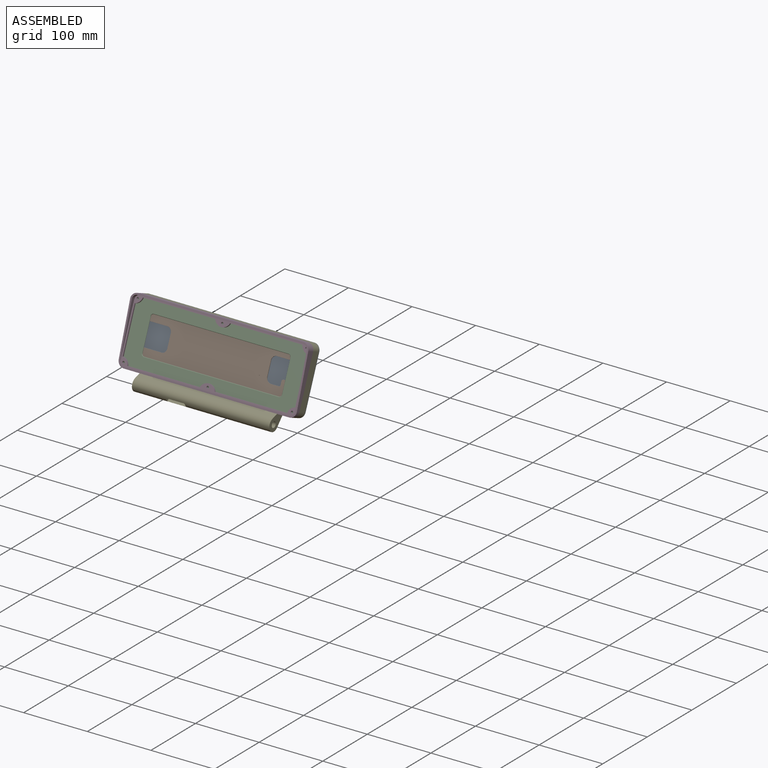
[diagram: assembled view]
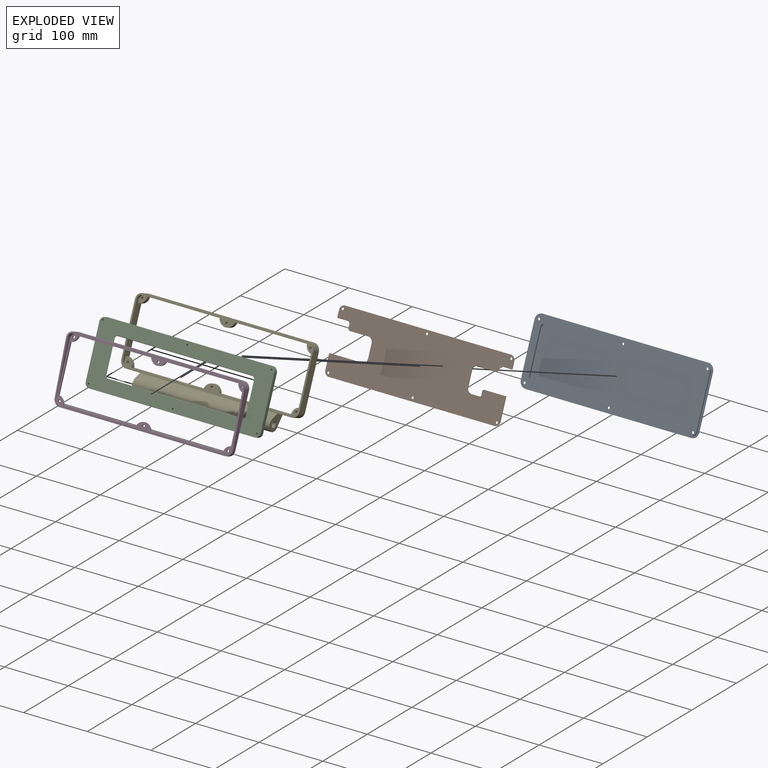
[diagram: exploded view]
GUIDED TOUR — FREECAD ASSEMBLY "Assembly_TopEnclosure0"

This assembly has 5 components, labeled P0..P4 below (a component is one placed body or linked part; the same part can appear more than once), held together by 8 modeled joints. A joint is a constraint between two components; its type names the relative motion it leaves free:
  FASTENED — locks the two components together rigidly (no relative motion).
Axis/direction vectors are unit vectors and 'through' points are millimeter coordinates, both in the assembly's world frame.

MATES
  1. FASTENED [Fixed] "Joint": P4 <-> P1, direction (0.000, -0.924, 0.383) through (0.00, 12.44, 62.34) mm
  2. FASTENED [Fixed] "Joint001": P4 <-> P1, direction (0.000, -0.924, 0.383) through (-132.40, 12.44, 62.34) mm
  3. FASTENED [Fixed] "Joint002": P1 <-> P2, direction (0.000, -0.924, 0.383) through (132.40, 11.51, 62.73) mm
  4. FASTENED [Fixed] "Joint003": P1 <-> P2, direction (0.000, -0.924, 0.383) through (-132.40, -20.94, -15.62) mm
  5. FASTENED [Fixed] "Joint004": P4 <-> P3, direction (0.000, -0.924, 0.383) through (130.00, 6.90, 62.04) mm
  6. FASTENED [Fixed] "Joint005": P4 <-> P3, direction (0.000, -0.924, 0.383) through (-130.00, -23.72, -11.87) mm
  7. FASTENED [Fixed] "Joint006": P0 <-> P4, direction (0.000, 0.924, -0.383) through (130.00, 19.83, 56.68) mm
  8. FASTENED [Fixed] "Joint007": P4 <-> P0, direction (0.000, -0.924, 0.383) through (-130.00, -10.78, -17.23) mm

ASSEMBLY ORDER
  1. P4 — the base component [order verified]
  2. P1 [order verified]
  3. P2 [order verified]
  4. P3 [order verified]
  5. P0 [order verified]
(P3 verified with a relaxed clearance tolerance: the source model stores slight part interference there.)
Order-tag legend:
  [order verified] — this step's position reverses a verified removal order: the component was checked to insert without passing through the ones already placed.

Of the 5 components, 5 carry a construction recipe — the FreeCAD feature program (sketches with constraints, then the solid features that consume them) that regenerates the part from scratch, quoted from this document or from the linked companion document it references; the rest are supplied as boundary geometry only. The tour below walks the components in assembly order: each is shown spotlighted twice — in the assembled view, then in the exploded view, where a leader line traces a displaced component back to its assembled socket (components that stay in place when exploded have no leader line; saturated green if recipe-attached, orange if geometry-only; every other component desaturated gray) — followed by its recipe or geometry summary and the mates that hold it.
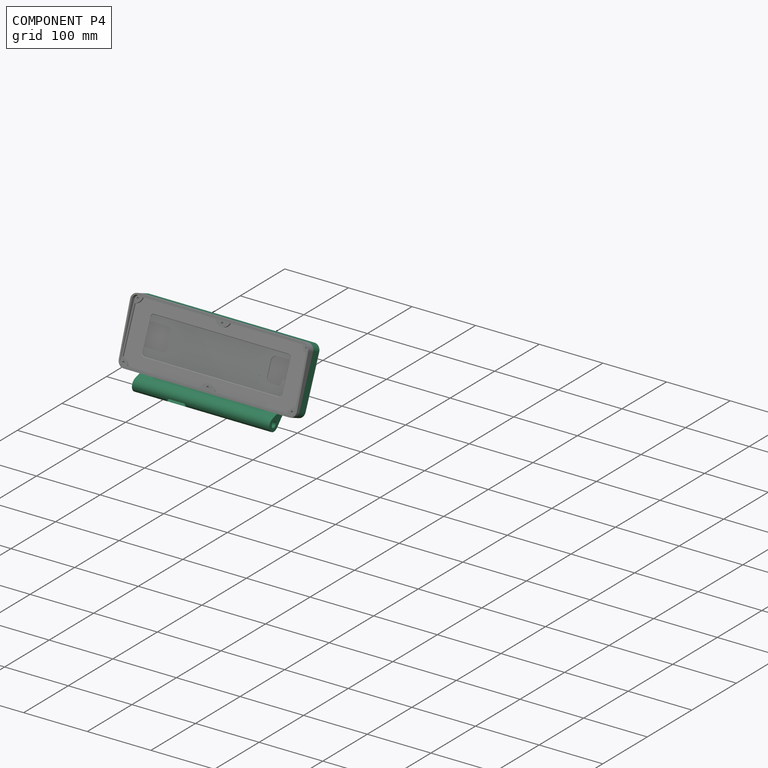
[diagram: component P4 — assembled]
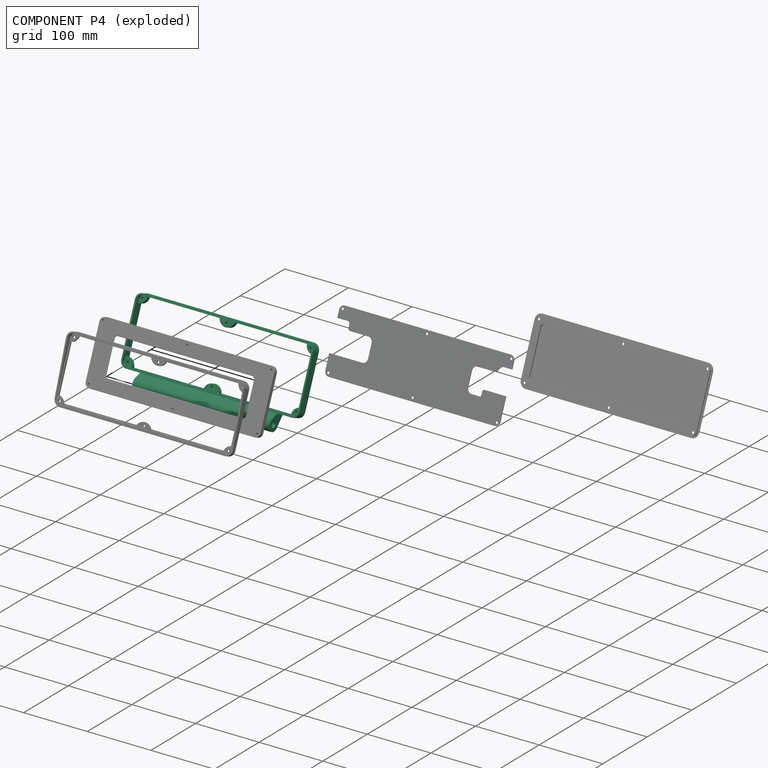
[diagram: component P4 — exploded]
COMPONENT P4 — recipe-attached ("Top Enclosure Shell - 2", a linked part whose construction recipe lives in a companion FreeCAD document of the same project; that document's serialized recipe follows).
Held by: FASTENED mate "Joint" to P1; FASTENED mate "Joint001" to P1; FASTENED mate "Joint004" to P3; FASTENED mate "Joint005" to P3; FASTENED mate "Joint006" to P0; FASTENED mate "Joint007" to P0.
Construction recipe (the companion document, serialized — sketch geometry with constraints, then the solid features built on it; lengths are millimeters unless a unit is written):

FCSTD DOCUMENT  (FreeCAD 1.0R39319 (Git))
Label: TopEnclosureShell
License: All rights reserved
LicenseURL: https://en.wikipedia.org/wiki/All_rights_reserved
objects: PartDesign::SubShapeBinder×20, Sketcher::SketchObject×9, PartDesign::Mirrored×8, PartDesign::Body×8, PartDesign::Pocket×6, PartDesign::Pad×5, PartDesign::Boolean×5, PartDesign::Hole×4, Part::FeaturePython×3, App::Link×2, PartDesign::MultiTransform×1, Part::Extrusion×1, App::DocumentObjectGroup×1, App::VarSet×1
note: 123 computed .brp shape members not serialized (recipe doc carries the construction recipe); baked Part::Feature solids carry a one-line shape summary decoded from their .brp
EXTERNAL_REF file=Spec.FCStd obj=Spreadsheet
EXTERNAL_REF file=TopEnclosure.FCStd obj=Sketch

FEATURE [App::Link] Link  label="Vars"
  LinkedObject = -> <external Spec.FCStd>#Spreadsheet
FEATURE [App::Link] Link001  label="MasterSketch"
  LinkedObject = -> <external TopEnclosure.FCStd>#Sketch
FEATURE [PartDesign::SubShapeBinder] Binder
  BindCopyOnChange = 0
  BindMode = 0
  ClaimChildren = false
  Context = -> Body [Binder.]
  Fuse = false
  MakeFace = true
  OffsetFill = false
  OffsetIntersection = false
  OffsetJoinType = 0
  OffsetOpenResult = false
  PartialLoad = false
  Refine = true
  Relative = true
  Support = -> [Link001[Edge17,Edge1,Edge2,Edge18,Edge3,Edge19,Edge20,Edge4]]
  _Version = 2
FEATURE [PartDesign::Pad] Pad
  Direction = (0,0,1)
  Length = 14
  Length2 = 10
  Profile = -> Binder
  Refine = true
  Suppressed = false
  Type = 0
  expr: Length = <<Vars>>.top_enclosure_depth
FEATURE [PartDesign::SubShapeBinder] Binder001
  BindCopyOnChange = 0
  BindMode = 0
  ClaimChildren = false
  Context = -> Body [Binder001.]
  Fuse = false
  MakeFace = true
  OffsetFill = false
  OffsetIntersection = false
  OffsetJoinType = 0
  OffsetOpenResult = false
  PartialLoad = false
  Refine = true
  Relative = true
  Support = -> [Link001[Edge37,Edge39]]
  _Version = 2
FEATURE [Sketcher::SketchObject] Sketch
  ArcFitTolerance = 1e-06
  AttachmentOffset = pos=(0,0,2.5) rot=(0,0,1;0rad)
  AttachmentSupport = -> [XY_Plane]
  ExternalGeometry = -> [Binder001]
  FullyConstrained = true
  MakeInternals = false
  MapMode = 5
  Placement = pos=(0,0,2.5) rot=(0,0,1;0rad)
  expr: .AttachmentOffset.Base.z = <<LocalVars>>.bottom_offset
  sketch-geometry (4):
    g0: ArcOfCircle CenterX=-137.703 CenterY=47.7033 CenterZ=0 NormalX=0 NormalY=0 NormalZ=1 AngleXU=0 Radius=12.5 StartAngle=4.72865 EndAngle=6.26692
    g1: LineSegment StartX=-137.5 StartY=35.205 StartZ=0 EndX=-137.5 EndY=41.4 EndZ=0
    g2: LineSegment StartX=-125.205 StartY=47.5 StartZ=0 EndX=-131.4 EndY=47.5 EndZ=0
    g3: ArcOfCircle CenterX=-131.4 CenterY=41.4 CenterZ=0 NormalX=0 NormalY=0 NormalZ=1 AngleXU=0 Radius=6.1 StartAngle=1.5708 EndAngle=3.14159
  constraints (10):
    c: Coincident(g0,g-4)
    c: PointOnObject(g0,g-4)
    c: Horizontal(g-3,g0)
    c: Vertical(g-3,g0)
    c: Coincident(g1,g0)
    c: Coincident(g1,g-3)
    c: Coincident(g2,g0)
    c: Coincident(g2,g-3)
    c: Coincident(g3,g1)
    c: Tangent(g3,g2) = -1.5708
FEATURE [PartDesign::SubShapeBinder] Binder002
  BindCopyOnChange = 0
  BindMode = 0
  ClaimChildren = false
  Context = -> Body [Binder002.]
  Fuse = false
  MakeFace = true
  OffsetFill = false
  OffsetIntersection = false
  OffsetJoinType = 0
  OffsetOpenResult = false
  PartialLoad = false
  Refine = true
  Relative = true
  Support = -> [Link001[Edge38,Edge40]]
  _Version = 2
FEATURE [PartDesign::Pad] Pad001
  BaseFeature = -> Pad
  Direction = (0,0,1)
  Length = 6.5
  Length2 = 10
  Profile = -> Sketch
  ReferenceAxis = -> Sketch [N_Axis]
  Refine = true
  Suppressed = false
  Type = 0
  expr: Length = <<LocalVars>>.internal_depth
FEATURE [PartDesign::SubShapeBinder] Binder003
  BindCopyOnChange = 0
  BindMode = 0
  ClaimChildren = false
  Context = -> Body [Binder003.]
  Fuse = false
  MakeFace = true
  OffsetFill = false
  OffsetIntersection = false
  OffsetJoinType = 0
  OffsetOpenResult = false
  PartialLoad = false
  Refine = true
  Relative = true
  Support = -> [Binder001[Edge2]]
  _Version = 2
FEATURE [PartDesign::Hole] Hole
  BaseFeature = -> Pad001
  CustomThreadClearance = 0
  Depth = 25
  DepthType = 0
  Diameter = 4.5
  DrillForDepth = false
  DrillPoint = 1
  DrillPointAngle = 118
  HoleCutCountersinkAngle = 90
  HoleCutCustomValues = false
  HoleCutDepth = 0
  HoleCutDiameter = 6.1
  HoleCutType = 0
  ModelThread = false
  Profile = -> Binder003
  Refine = true
  Reversed = true
  Suppressed = false
  Tapered = false
  TaperedAngle = 90
  ThreadClass = 0
  ThreadDepth = 25
  ThreadDepthType = 0
  ThreadDirection = 0
  ThreadFit = 0
  ThreadSize = 0
  ThreadType = 0
  Threaded = false
  UseCustomThreadClearance = false
  expr: Diameter = <<Vars>>.nut_inserts_m3
FEATURE [PartDesign::Mirrored] Mirrored
  MirrorPlane = -> YZ_Plane
  Refine = true
  Suppressed = false
  TransformMode = 0
FEATURE [PartDesign::Mirrored] Mirrored001
  MirrorPlane = -> XZ_Plane
  Refine = true
  Suppressed = false
  TransformMode = 0
FEATURE [PartDesign::MultiTransform] MultiTransform
  BaseFeature = -> Hole
  Originals = -> [Pad001,Hole]
  Refine = true
  Suppressed = false
  TransformMode = 0
  Transformations = -> [Mirrored,Mirrored001]
FEATURE [Sketcher::SketchObject] Sketch001
  ArcFitTolerance = 1e-06
  AttachmentOffset = pos=(0,0,2.5) rot=(0,0,1;0rad)
  AttachmentSupport = -> [XY_Plane]
  ExternalGeometry = -> [Binder002]
  FullyConstrained = true
  MakeInternals = false
  MapMode = 5
  Placement = pos=(0,0,2.5) rot=(0,0,1;0rad)
  expr: .AttachmentOffset.Base.z = <<LocalVars>>.bottom_offset
  sketch-geometry (2):
    g0: ArcOfCircle CenterX=0 CenterY=49.9 CenterZ=0 NormalX=0 NormalY=0 NormalZ=1 AngleXU=0 Radius=12.5 StartAngle=3.33479 EndAngle=6.08999
    g1: LineSegment StartX=-12.2674 StartY=47.5 StartZ=0 EndX=12.2674 EndY=47.5 EndZ=0
  constraints (6):
    c: Coincident(g0,g-3)
    c: PointOnObject(g0,g-3)
    c: Horizontal(g1)
    c: PointOnObject(g1,g-4)
    c: Coincident(g1,g0)
    c: Coincident(g1,g0)
FEATURE [PartDesign::Pad] Pad002
  BaseFeature = -> MultiTransform
  Direction = (0,0,1)
  Length = 6.5
  Length2 = 10
  Profile = -> Sketch001
  ReferenceAxis = -> Sketch001 [N_Axis]
  Refine = true
  Suppressed = false
  Type = 0
  expr: Length = <<LocalVars>>.internal_depth
FEATURE [PartDesign::SubShapeBinder] Binder004
  BindCopyOnChange = 0
  BindMode = 0
  ClaimChildren = false
  Context = -> Body [Binder004.]
  Fuse = false
  MakeFace = true
  OffsetFill = false
  OffsetIntersection = false
  OffsetJoinType = 0
  OffsetOpenResult = false
  PartialLoad = false
  Refine = true
  Relative = true
  Support = -> [Binder002[Edge2]]
  _Version = 2
FEATURE [PartDesign::Hole] Hole001
  BaseFeature = -> Pad002
  CustomThreadClearance = 0
  Depth = 25
  DepthType = 0
  Diameter = 4.5
  DrillForDepth = false
  DrillPoint = 1
  DrillPointAngle = 118
  HoleCutCountersinkAngle = 90
  HoleCutCustomValues = false
  HoleCutDepth = 0
  HoleCutDiameter = 6.1
  HoleCutType = 0
  ModelThread = false
  Profile = -> Binder004
  Refine = true
  Reversed = true
  Suppressed = false
  Tapered = false
  TaperedAngle = 90
  ThreadClass = 0
  ThreadDepth = 25
  ThreadDepthType = 0
  ThreadDirection = 0
  ThreadFit = 0
  ThreadSize = 0
  ThreadType = 0
  Threaded = false
  UseCustomThreadClearance = false
  expr: Diameter = <<Vars>>.nut_inserts_m3
FEATURE [PartDesign::Mirrored] Mirrored002
  BaseFeature = -> Hole001
  MirrorPlane = -> XZ_Plane
  Originals = -> [Pad002,Hole001]
  Refine = true
  Suppressed = false
  TransformMode = 0
FEATURE [PartDesign::Body] Body  label="Top Enclosure Shell - Base"
  AllowCompound = false
  Group = -> [Binder,Pad,Sketch,Binder001,Binder002,Pad001,Binder003,Hole,MultiTransform,Mirrored,Mirrored001,Sketch001,Pad002,Binder004,Hole001,Mirrored002]
  Origin = -> Origin
  Tip = -> Mirrored002
FEATURE [PartDesign::SubShapeBinder] Binder005
  BindCopyOnChange = 0
  BindMode = 0
  ClaimChildren = false
  Context = -> Body001 [Binder005.]
  Fuse = false
  MakeFace = true
  OffsetFill = false
  OffsetIntersection = false
  OffsetJoinType = 0
  OffsetOpenResult = false
  PartialLoad = false
  Refine = true
  Relative = true
  Support = -> [Body]
  _Version = 2
FEATURE [PartDesign::Boolean] Boolean
  Group = -> [Binder005]
  Refine = true
  Suppressed = false
  Type = 0
  UsePlacement = true
FEATURE [Sketcher::SketchObject] Sketch002
  ArcFitTolerance = 1e-06
  AttachmentSupport = -> [YZ_Plane001]
  FullyConstrained = true
  MakeInternals = false
  MapMode = 5
  Placement = pos=(0,0,0) rot=(0.57735,0.57735,0.57735;2.0944rad)
  expr: Constraints[2] = <<Vars>>.top_enclosure_height / 2
  expr: Constraints[3] = <<Vars>>.top_enclosure_depth
  sketch-geometry (12):
    g0: LineSegment StartX=-50 StartY=0 StartZ=0 EndX=-50 EndY=14 EndZ=0
    g1: LineSegment StartX=-50 StartY=14 StartZ=0 EndX=-57.275 EndY=22.8501 EndZ=0
    g2: LineSegment StartX=-50 StartY=0 StartZ=0 EndX=-68.5971 EndY=7.16934 EndZ=0
    g3: Circle CenterX=-65 CenterY=16.5 CenterZ=0 NormalX=0 NormalY=0 NormalZ=1 AngleXU=0 Radius=4.5
    g4: ArcOfCircle CenterX=-65 CenterY=16.5 CenterZ=0 NormalX=0 NormalY=0 NormalZ=1 AngleXU=0 Radius=10 StartAngle=0.688024 EndAngle=4.34444
    g5: LineSegment StartX=-65 StartY=22.85 StartZ=0 EndX=-70.4993 EndY=19.675 EndZ=0
    g6: LineSegment StartX=-70.4993 StartY=19.675 StartZ=0 EndX=-70.4993 EndY=13.325 EndZ=0
    g7: LineSegment StartX=-70.4993 StartY=13.325 StartZ=0 EndX=-65 EndY=10.15 EndZ=0
    g8: LineSegment StartX=-65 StartY=10.15 StartZ=0 EndX=-59.5007 EndY=13.325 EndZ=0
    g9: LineSegment StartX=-59.5007 StartY=13.325 StartZ=0 EndX=-59.5007 EndY=19.675 EndZ=0
    g10: LineSegment StartX=-59.5007 StartY=19.675 StartZ=0 EndX=-65 EndY=22.85 EndZ=0
    g11: Circle [constr] CenterX=-65 CenterY=16.5 CenterZ=0 NormalX=0 NormalY=0 NormalZ=1 AngleXU=0 Radius=6.35
  constraints (29):
    c: PointOnObject(g0,g-1)
    c: Vertical(g0)
    c: DistanceX(g0,g-1) = 50
    c: DistanceY(g0,g0) = 14
    c: Coincident(g1,g0)
    c: Coincident(g2,g0)
    c: Coincident(g4,g3)
    c: Tangent(g1,g4) = -1.5708
    c: Tangent(g2,g4) = 1.5708
    c: Diameter(g4) = 20
    c: DistanceX(g3,g0) = 15
    c: DistanceY(g0,g3) = 2.5
    c: Diameter(g3) = 9
    c: Coincident(g5,g6)
    c: Coincident(g6,g7)
    c: Coincident(g7,g8)
    c: Coincident(g8,g9)
    c: Coincident(g9,g10)
    c: Coincident(g10,g5)
    c: Equal(g5, g6-g10) x5
    c: PointOnObject(g5,g11)
    c: PointOnObject(g6,g11)
    c: PointOnObject(g7,g11)
    c: PointOnObject(g8,g11)
    c: PointOnObject(g9,g11)
    c: PointOnObject(g10,g11)
    c: Coincident(g11,g3)
    c: Vertical(g5,g3)
    c: DistanceY(g6,g6) = 6.35
FEATURE [PartDesign::SubShapeBinder] Binder006
  BindCopyOnChange = 0
  BindMode = 0
  ClaimChildren = false
  Context = -> Body001 [Binder006.]
  Fuse = false
  MakeFace = true
  OffsetFill = false
  OffsetIntersection = false
  OffsetJoinType = 0
  OffsetOpenResult = false
  PartialLoad = false
  Refine = true
  Relative = true
  Support = -> [Sketch002[Edge2,Edge3,Edge4,Edge1]]
  _Version = 2
FEATURE [PartDesign::Pad] Pad003
  BaseFeature = -> Boolean
  Direction = (1,0,0)
  Length = 216
  Length2 = 10
  Midplane = true
  Profile = -> Binder006
  Refine = true
  Suppressed = false
  Type = 0
  expr: Length = <<Vars>>.top_enclosure_width - 32 * 2
FEATURE [PartDesign::SubShapeBinder] Binder007
  BindCopyOnChange = 0
  BindMode = 0
  ClaimChildren = false
  Context = -> Body001 [Binder007.]
  Fuse = false
  MakeFace = true
  OffsetFill = false
  OffsetIntersection = false
  OffsetJoinType = 0
  OffsetOpenResult = false
  PartialLoad = false
  Placement = pos=(99,0,0) rot=(0,0,1;0rad)
  Refine = true
  Relative = true
  Support = -> [Sketch002[Edge5]]
  _Version = 2
  expr: .Placement.Base.x = <<Vars>>.top_enclosure_width / 2 - 32 - 9
FEATURE [PartDesign::SubShapeBinder] Binder008
  BindCopyOnChange = 0
  BindMode = 0
  ClaimChildren = false
  Context = -> Body001 [Binder008.]
  Fuse = false
  MakeFace = true
  OffsetFill = false
  OffsetIntersection = false
  OffsetJoinType = 0
  OffsetOpenResult = false
  PartialLoad = false
  Placement = pos=(99,0,0) rot=(0,0,1;0rad)
  Refine = true
  Relative = true
  Support = -> [Sketch002[Edge6,Edge11,Edge10,Edge9,Edge8,Edge7]]
  _Version = 2
  expr: .Placement.Base.x = <<Vars>>.top_enclosure_width / 2 - 32 - 9
FEATURE [PartDesign::Pocket] Pocket
  BaseFeature = -> Pad003
  Direction = (-1,0,0)
  Length = 5
  Length2 = 5
  Profile = -> Binder007
  Refine = true
  Reversed = true
  Suppressed = false
  Type = 1
FEATURE [PartDesign::Pocket] Pocket001
  BaseFeature = -> Pocket
  Direction = (-1,0,0)
  Length = 9
  Length2 = 5
  Profile = -> Binder008
  Refine = true
  Suppressed = false
  Type = 0
FEATURE [PartDesign::Mirrored] Mirrored003
  BaseFeature = -> Pocket001
  MirrorPlane = -> YZ_Plane001
  Originals = -> [Pocket,Pocket001]
  Refine = true
  Suppressed = false
  TransformMode = 0
FEATURE [PartDesign::Body] Body001  label="Top Enclosure Shell - 1"
  AllowCompound = false
  Group = -> [Boolean,Sketch002,Binder006,Pad003,Binder007,Binder008,Pocket,Pocket001,Mirrored003]
  Origin = -> Origin001
  Tip = -> Mirrored003
FEATURE [PartDesign::SubShapeBinder] Binder009
  BindCopyOnChange = 0
  BindMode = 0
  ClaimChildren = false
  Context = -> Body002 [Binder009.]
  Fuse = false
  MakeFace = true
  OffsetFill = false
  OffsetIntersection = false
  OffsetJoinType = 0
  OffsetOpenResult = false
  PartialLoad = false
  Refine = true
  Relative = true
  Support = -> [Body001]
  _Version = 2
FEATURE [PartDesign::Boolean] Boolean001
  Group = -> [Binder009]
  Refine = true
  Suppressed = false
  Type = 0
  UsePlacement = true
FEATURE [Sketcher::SketchObject] Sketch003
  ArcFitTolerance = 1e-06
  AttachmentSupport = -> [Boolean001]
  ExternalGeometry = -> [Boolean001]
  FullyConstrained = false
  MakeInternals = false
  MapMode = 5
  Placement = pos=(0,-47.5,0) rot=(0,0.707107,0.707107;3.14159rad)
  expr: Constraints[26] = <<Vars>>.wire_hole_offset_x
  expr: Constraints[28] = <<Vars>>.wire_hole_height
  expr: Constraints[4] = <<Vars>>.wire_hole_width
  sketch-geometry (13):
    g0: LineSegment StartX=25 StartY=9.5 StartZ=0 EndX=25 EndY=4.5 EndZ=0
    g1: LineSegment StartX=27 StartY=2.5 StartZ=0 EndX=53 EndY=2.5 EndZ=0
    g2: LineSegment StartX=55 StartY=4.5 StartZ=0 EndX=55 EndY=9.5 EndZ=0
    g3: LineSegment StartX=53 StartY=11.5 StartZ=0 EndX=27 EndY=11.5 EndZ=0
    g4: ArcOfCircle CenterX=27 CenterY=9.5 CenterZ=0 NormalX=0 NormalY=0 NormalZ=1 AngleXU=0 Radius=2 StartAngle=1.5708 EndAngle=3.14159
    g5: GeomPoint [constr] X=25 Y=11.5 Z=0
    g6: ArcOfCircle CenterX=27 CenterY=4.5 CenterZ=0 NormalX=0 NormalY=0 NormalZ=1 AngleXU=0 Radius=2 StartAngle=3.14159 EndAngle=4.71239
    g7: GeomPoint [constr] X=25 Y=2.5 Z=0
    g8: ArcOfCircle CenterX=53 CenterY=4.5 CenterZ=0 NormalX=0 NormalY=0 NormalZ=1 AngleXU=0 Radius=2 StartAngle=4.71239 EndAngle=6.28319
    g9: GeomPoint [constr] X=55 Y=2.5 Z=0
    g10: ArcOfCircle CenterX=53 CenterY=9.5 CenterZ=0 NormalX=0 NormalY=0 NormalZ=1 AngleXU=0 Radius=2 StartAngle=0 EndAngle=1.5708
    g11: GeomPoint [constr] X=55 Y=11.5 Z=0
    g12: GeomPoint X=40 Y=7 Z=0
  constraints (29):
    c: Vertical(g0)
    c: Vertical(g2)
    c: Horizontal(g1)
    c: Horizontal(g3)
    c: DistanceX(g5,g11) = 30
    c: PointOnObject(g5,g0)
    c: PointOnObject(g5,g3)
    c: Tangent(g0,g4) = -1.5708
    c: Tangent(g3,g4) = -1.5708
    c: PointOnObject(g7,g0)
    c: PointOnObject(g7,g1)
    c: Tangent(g0,g6) = -1.5708
    c: Tangent(g1,g6) = -1.5708
    c: PointOnObject(g9,g1)
    c: PointOnObject(g9,g2)
    c: Tangent(g1,g8) = -1.5708
    c: Tangent(g2,g8) = -1.5708
    c: PointOnObject(g11,g2)
    c: PointOnObject(g11,g3)
    c: Tangent(g2,g10) = -1.5708
    c: Tangent(g3,g10) = -1.5708
    c: Equal(g8,g10)
    c: Equal(g10,g4)
    c: Equal(g4,g6)
    c: Radius(g6) = 2
    c: Symmetric(g7,g11,g12)
    c: DistanceX(g-1,g12) = 40
    c: DistanceY(g-1,g12) = 7
    c: DistanceY(g1,g3) = 9
FEATURE [Sketcher::SketchObject] Sketch004
  ArcFitTolerance = 1e-06
  AttachmentSupport = -> [YZ_Plane002]
  ExternalGeometry = -> [Boolean001]
  FullyConstrained = true
  MakeInternals = false
  MapMode = 5
  Placement = pos=(0,0,0) rot=(0.57735,0.57735,0.57735;2.0944rad)
  sketch-geometry (1):
    g0: LineSegment StartX=-84.641 StartY=27 StartZ=0 EndX=-50 EndY=7 EndZ=0
  constraints (3):
    c: Symmetric(g-4,g-4,g0)
    c: Distance(g0) = 40
    c: Angle(g0,g-1) = 0.523599
FEATURE [PartDesign::Pocket] Pocket002
  BaseFeature = -> Boolean001
  Direction = (0,-0.866025,0.5)
  Length = 5
  Length2 = 5
  Profile = -> Sketch003
  ReferenceAxis = -> Sketch004 [Edge1]
  Refine = true
  Suppressed = false
  Type = 1
FEATURE [PartDesign::Body] Body002  label="Top Enclosure Shell - 2"
  AllowCompound = false
  Group = -> [Boolean001,Sketch003,Sketch004,Pocket002]
  Origin = -> Origin002
  Tip = -> Pocket002
FEATURE [PartDesign::SubShapeBinder] Binder010
  BindCopyOnChange = 0
  BindMode = 0
  ClaimChildren = false
  Context = -> Body003 [Binder010.]
  Fuse = false
  MakeFace = true
  OffsetFill = false
  OffsetIntersection = false
  OffsetJoinType = 0
  OffsetOpenResult = false
  PartialLoad = false
  Refine = true
  Relative = true
  Support = -> [Body002]
  _Version = 2
FEATURE [PartDesign::Boolean] Boolean002
  Group = -> [Binder010]
  Refine = true
  Suppressed = false
  Type = 0
  UsePlacement = true
FEATURE [Sketcher::SketchObject] Sketch005
  ArcFitTolerance = 1e-06
  AttachmentSupport = -> [YZ_Plane003]
  FullyConstrained = true
  MakeInternals = false
  MapMode = 5
  Placement = pos=(0,0,0) rot=(0.57735,0.57735,0.57735;2.0944rad)
  expr: Constraints[1] = <<Vars>>.top_enclosure_depth
  expr: Constraints[2] = <<Vars>>.top_enclosure_height / 2 - 10
  sketch-geometry (1):
    g0: LineSegment StartX=-90 StartY=14 StartZ=0 EndX=-40 EndY=14 EndZ=0
  constraints (4):
    c: Horizontal(g0)
    c: DistanceY(g-1,g0) = 14
    c: DistanceX(g0,g-1) = 40
    c: DistanceX(g0,g0) = 50
FEATURE [PartDesign::Body] Body003  label="Top Enclosure Shell Split"
  AllowCompound = false
  Group = -> [Boolean002,Sketch005]
  Origin = -> Origin003
  Tip = -> Boolean002
FEATURE [Part::Extrusion] Extrude
  Base = -> Sketch005
  Dir = (1,0,0)
  DirMode = 2
  FaceMakerClass = Part::FaceMakerBullseye
  FaceMakerMode = 3
  LengthFwd = 280
  LengthRev = 0
  Solid = false
  Symmetric = true
  expr: LengthFwd = <<Vars>>.top_enclosure_width
FEATURE [Part::FeaturePython] Slice  # WARN: FeaturePython — macro-defined, semantics opaque (R4)
  Base = -> Body003
  Mode = 1
  Tolerance = 0
  Tools = -> [Extrude]
FEATURE [Part::FeaturePython] Slice_child0  label="Slice.0"  # WARN: FeaturePython — macro-defined, semantics opaque (R4)
  Base = -> Slice
  FilterType = 1
  Invert = false
  OverrideMaxVal = 0
  WindowFrom = 80
  WindowTo = 100
  items = 0
FEATURE [Part::FeaturePython] Slice_child1  label="Slice.1"  # WARN: FeaturePython — macro-defined, semantics opaque (R4)
  Base = -> Slice
  FilterType = 1
  Invert = false
  OverrideMaxVal = 0
  WindowFrom = 80
  WindowTo = 100
  items = 1
FEATURE [App::DocumentObjectGroup] GrExplode_Slice  label="Exploded Slice"
  Group = -> [Slice_child0,Slice_child1]
FEATURE [PartDesign::SubShapeBinder] Binder011
  BindCopyOnChange = 0
  BindMode = 0
  ClaimChildren = false
  Context = -> Body004 [Binder011.]
  Fuse = false
  MakeFace = true
  OffsetFill = false
  OffsetIntersection = false
  OffsetJoinType = 0
  OffsetOpenResult = false
  PartialLoad = false
  Refine = true
  Relative = true
  Support = -> [Slice_child0]
  _Version = 2
FEATURE [PartDesign::Boolean] Boolean003
  Group = -> [Binder011]
  Refine = true
  Suppressed = false
  Type = 0
  UsePlacement = true
FEATURE [PartDesign::SubShapeBinder] Binder012
  BindCopyOnChange = 0
  BindMode = 0
  ClaimChildren = false
  Context = -> Body005 [Binder012.]
  Fuse = false
  MakeFace = true
  OffsetFill = false
  OffsetIntersection = false
  OffsetJoinType = 0
  OffsetOpenResult = false
  PartialLoad = false
  Refine = true
  Relative = true
  Support = -> [Slice_child1]
  _Version = 2
FEATURE [PartDesign::Boolean] Boolean004
  Group = -> [Binder012]
  Refine = true
  Suppressed = false
  Type = 0
  UsePlacement = true
FEATURE [PartDesign::SubShapeBinder] Binder013
  BindCopyOnChange = 0
  BindMode = 0
  ClaimChildren = false
  Context = -> Body006 [Binder013.]
  Fuse = false
  MakeFace = true
  OffsetFill = false
  OffsetIntersection = false
  OffsetJoinType = 0
  OffsetOpenResult = false
  PartialLoad = false
  Refine = true
  Relative = true
  Support = -> [Slice_child0[Face27]]
  _Version = 2
FEATURE [Sketcher::SketchObject] Sketch006
  ArcFitTolerance = 1e-06
  AttachmentSupport = -> [Binder013]
  ExternalGeometry = -> [Binder013]
  FullyConstrained = true
  MakeInternals = false
  MapMode = 5
  Placement = pos=(0,0,14) rot=(0,0,1;0rad)
  sketch-geometry (2):
    g0: Circle CenterX=-75 CenterY=-62.3412 CenterZ=0 NormalX=0 NormalY=0 NormalZ=1 AngleXU=0 Radius=1.5
    g1: LineSegment [constr] StartX=-75 StartY=-50 StartZ=0 EndX=-75 EndY=-74.6825 EndZ=0
  constraints (6):
    c: Diameter(g0) = 3
    c: PointOnObject(g1,g-5)
    c: PointOnObject(g1,g-6)
    c: Vertical(g1)
    c: Symmetric(g1,g1,g0)
    c: DistanceX(g-3,g1) = 15
FEATURE [PartDesign::SubShapeBinder] Binder014
  BindCopyOnChange = 0
  BindMode = 0
  ClaimChildren = false
  Context = -> Body004 [Binder014.]
  Fuse = false
  MakeFace = true
  OffsetFill = false
  OffsetIntersection = false
  OffsetJoinType = 0
  OffsetOpenResult = false
  PartialLoad = false
  Refine = true
  Relative = true
  Support = -> [Body006[Sketch006.]]
  _Version = 2
FEATURE [PartDesign::Hole] Hole002
  BaseFeature = -> Boolean003
  CustomThreadClearance = 0
  Depth = 6
  DepthType = 0
  Diameter = 4.5
  DrillForDepth = false
  DrillPoint = 1
  DrillPointAngle = 118
  HoleCutCountersinkAngle = 90
  HoleCutCustomValues = false
  HoleCutDepth = 0
  HoleCutDiameter = 6.1
  HoleCutType = 0
  ModelThread = false
  Profile = -> Binder014
  Refine = true
  Suppressed = false
  Tapered = false
  TaperedAngle = 90
  ThreadClass = 0
  ThreadDepth = 6
  ThreadDepthType = 0
  ThreadDirection = 0
  ThreadFit = 0
  ThreadSize = 0
  ThreadType = 0
  Threaded = false
  UseCustomThreadClearance = false
  expr: Diameter = <<Vars>>.nut_inserts_m3
FEATURE [PartDesign::Mirrored] Mirrored004
  BaseFeature = -> Hole002
  MirrorPlane = -> YZ_Plane004
  Originals = -> [Hole002]
  Refine = true
  Suppressed = false
  TransformMode = 0
FEATURE [PartDesign::SubShapeBinder] Binder015
  BindCopyOnChange = 0
  BindMode = 0
  ClaimChildren = false
  Context = -> Body005 [Binder015.]
  Fuse = false
  MakeFace = true
  OffsetFill = false
  OffsetIntersection = false
  OffsetJoinType = 0
  OffsetOpenResult = false
  PartialLoad = false
  Refine = true
  Relative = true
  Support = -> [Body006[Sketch006.]]
  _Version = 2
FEATURE [PartDesign::SubShapeBinder] Binder016
  BindCopyOnChange = 0
  BindMode = 0
  ClaimChildren = false
  Context = -> Body005 [Binder016.]
  Fuse = false
  MakeFace = true
  Offset = 1.5
  OffsetFill = false
  OffsetIntersection = false
  OffsetJoinType = 0
  OffsetOpenResult = false
  PartialLoad = false
  Placement = pos=(0,0,15) rot=(0,0,1;0rad)
  Refine = true
  Relative = true
  Support = -> [Body006[Sketch006.]]
  _Version = 2
FEATURE [PartDesign::Hole] Hole003
  BaseFeature = -> Boolean004
  CustomThreadClearance = 0
  Depth = 25
  DepthType = 0
  Diameter = 3.6
  DrillForDepth = false
  DrillPoint = 1
  DrillPointAngle = 118
  HoleCutCountersinkAngle = 90
  HoleCutCustomValues = false
  HoleCutDepth = 0
  HoleCutDiameter = 6.1
  HoleCutType = 0
  ModelThread = false
  Profile = -> Binder015
  Refine = true
  Reversed = true
  Suppressed = false
  Tapered = false
  TaperedAngle = 90
  ThreadClass = 0
  ThreadDepth = 25
  ThreadDepthType = 0
  ThreadDirection = 0
  ThreadFit = 2
  ThreadSize = 9
  ThreadType = 1
  Threaded = false
  UseCustomThreadClearance = false
FEATURE [PartDesign::Pocket] Pocket003
  BaseFeature = -> Hole003
  Direction = (0,0,-1)
  Length = 10
  Length2 = 5
  Offset = 2
  Profile = -> Binder016
  Refine = true
  Suppressed = false
  Type = 0
FEATURE [PartDesign::Mirrored] Mirrored005
  BaseFeature = -> Pocket003
  MirrorPlane = -> YZ_Plane005
  Originals = -> [Hole003,Pocket003]
  Refine = true
  Suppressed = false
  TransformMode = 0
FEATURE [Sketcher::SketchObject] Sketch007
  ArcFitTolerance = 1e-06
  AttachmentSupport = -> [Binder013]
  ExternalGeometry = -> [Binder013]
  FullyConstrained = true
  MakeInternals = false
  MapMode = 5
  Placement = pos=(0,0,14) rot=(0,0,1;0rad)
  sketch-geometry (2):
    g0: Circle CenterX=-63 CenterY=-62.3412 CenterZ=0 NormalX=0 NormalY=0 NormalZ=1 AngleXU=0 Radius=3
    g1: LineSegment [constr] StartX=-63 StartY=-50 StartZ=0 EndX=-63 EndY=-74.6825 EndZ=0
  constraints (6):
    c: PointOnObject(g1,g-5)
    c: PointOnObject(g1,g-6)
    c: Vertical(g1)
    c: Symmetric(g1,g1,g0)
    c: DistanceX(g1,g-3) = 8
    c: Diameter(g0) = 6
FEATURE [PartDesign::Body] Body006  label="Top Enclosure Shell Hindge Helper"
  AllowCompound = false
  Group = -> [Binder013,Sketch006,Sketch007]
  Origin = -> Origin006
FEATURE [PartDesign::SubShapeBinder] Binder017
  BindCopyOnChange = 0
  BindMode = 0
  ClaimChildren = false
  Context = -> Body004 [Binder017.]
  Fuse = false
  MakeFace = true
  OffsetFill = false
  OffsetIntersection = false
  OffsetJoinType = 0
  OffsetOpenResult = false
  PartialLoad = false
  Refine = true
  Relative = true
  Support = -> [Body006[Sketch007.]]
  _Version = 2
FEATURE [PartDesign::Pocket] Pocket004
  BaseFeature = -> Mirrored004
  Direction = (0,0,-1)
  Length = 4
  Length2 = 5
  Profile = -> Binder017
  Refine = true
  Suppressed = false
  Type = 0
FEATURE [PartDesign::Mirrored] Mirrored006
  BaseFeature = -> Pocket004
  MirrorPlane = -> YZ_Plane004
  Originals = -> [Pocket004]
  Refine = true
  Suppressed = false
  TransformMode = 0
FEATURE [PartDesign::Body] Body004  label="Top Enclosure Shell Part 1"
  AllowCompound = false
  Group = -> [Boolean003,Binder014,Hole002,Mirrored004,Binder017,Pocket004,Mirrored006]
  Origin = -> Origin004
  Tip = -> Mirrored006
FEATURE [PartDesign::SubShapeBinder] Binder018
  BindCopyOnChange = 0
  BindMode = 0
  ClaimChildren = false
  Context = -> Body005 [Binder018.]
  Fuse = false
  MakeFace = true
  OffsetFill = false
  OffsetIntersection = false
  OffsetJoinType = 0
  OffsetOpenResult = false
  PartialLoad = false
  Refine = true
  Relative = true
  Support = -> [Body006[Sketch007.]]
  _Version = 2
FEATURE [PartDesign::Pocket] Pocket005
  BaseFeature = -> Mirrored005
  Direction = (0,0,-1)
  Length = 4
  Length2 = 5
  Profile = -> Binder018
  Refine = true
  Reversed = true
  Suppressed = false
  Type = 0
FEATURE [PartDesign::Mirrored] Mirrored007
  BaseFeature = -> Pocket005
  MirrorPlane = -> YZ_Plane005
  Originals = -> [Pocket005]
  Refine = true
  Suppressed = false
  TransformMode = 0
FEATURE [PartDesign::Body] Body005  label="Top Enclosure Shell Part 2"
  AllowCompound = false
  Group = -> [Boolean004,Binder015,Binder016,Hole003,Pocket003,Mirrored005,Binder018,Pocket005,Mirrored007]
  Origin = -> Origin005
  Tip = -> Mirrored007
FEATURE [App::VarSet] VarSet  label="LocalVars"
  bottom_offset = 2.5
  internal_depth = 6.5
  expr: bottom_offset = <<Vars>>.top_enclosure_back_depth
  expr: internal_depth = <<Vars>>.top_enclosure_internal_depth
FEATURE [PartDesign::SubShapeBinder] Binder019
  BindCopyOnChange = 0
  BindMode = 0
  ClaimChildren = false
  Context = -> Body007 [Binder019.]
  Fuse = false
  MakeFace = true
  OffsetFill = false
  OffsetIntersection = false
  OffsetJoinType = 0
  OffsetOpenResult = false
  PartialLoad = false
  Refine = true
  Relative = true
  Support = -> [Body006[Sketch007.Edge1]]
  _Version = 2
FEATURE [Sketcher::SketchObject] Sketch008
  ArcFitTolerance = 1e-06
  AttachmentSupport = -> [XY_Plane007]
  ExternalGeometry = -> [Binder019]
  FullyConstrained = true
  MakeInternals = false
  MapMode = 5
  expr: Constraints[2] = 6 - <<Vars>>.clearance / 2
  sketch-geometry (1):
    g0: Circle CenterX=0 CenterY=0 CenterZ=0 NormalX=0 NormalY=0 NormalZ=1 AngleXU=0 Radius=2.95
  constraints (3):
    c: Coincident(g0,g-1)
    c: Diameter(g-3) = 6
    c: Diameter(g0) = 5.9
FEATURE [PartDesign::Pad] Pad004
  Direction = (0,0,1)
  Length = 7.6
  Length2 = 10
  Profile = -> Sketch008
  ReferenceAxis = -> Sketch008 [N_Axis]
  Refine = true
  Suppressed = false
  Type = 0
  expr: Length = 8 - 2 * <<Vars>>.clearance
FEATURE [PartDesign::Body] Body007  label="Parts Join Helper"
  AllowCompound = false
  Group = -> [Binder019,Sketch008,Pad004]
  Origin = -> Origin007
  Tip = -> Pad004
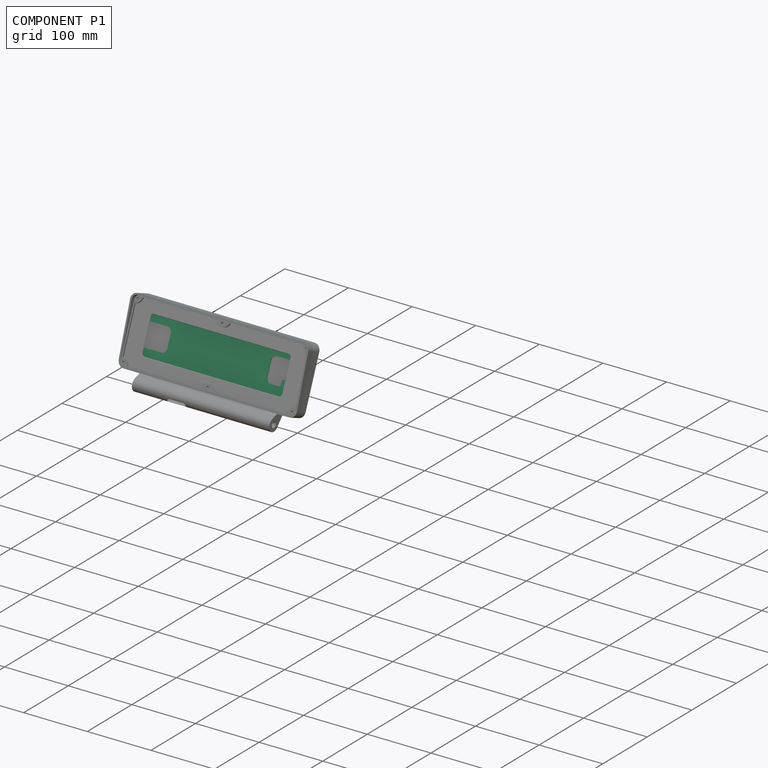
[diagram: component P1 — assembled]
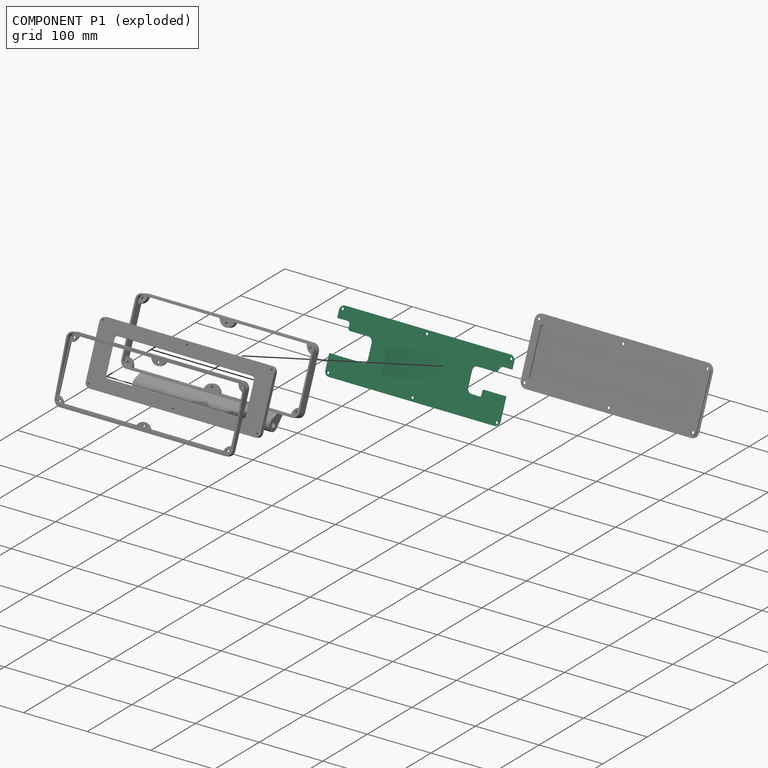
[diagram: component P1 — exploded]
COMPONENT P1 — recipe-attached ("Top Enclosure Display Back", a linked part whose construction recipe lives in a companion FreeCAD document of the same project; that document's serialized recipe follows).
Held by: FASTENED mate "Joint" to P4; FASTENED mate "Joint001" to P4; FASTENED mate "Joint002" to P2; FASTENED mate "Joint003" to P2.
Construction recipe (the companion document, serialized — sketch geometry with constraints, then the solid features built on it; lengths are millimeters unless a unit is written):

FCSTD DOCUMENT  (FreeCAD 1.0R39319 (Git))
Label: TopEnclosureDisplayBack_v3
License: All rights reserved
LicenseURL: https://en.wikipedia.org/wiki/All_rights_reserved
objects: PartDesign::SubShapeBinder×7, PartDesign::Hole×3, PartDesign::Mirrored×3, Sketcher::SketchObject×3, App::Link×2, PartDesign::Pad×2, PartDesign::MultiTransform×1, PartDesign::Pocket×1, PartDesign::Chamfer×1, PartDesign::Body×1
note: 43 computed .brp shape members not serialized (recipe doc carries the construction recipe); baked Part::Feature solids carry a one-line shape summary decoded from their .brp
EXTERNAL_REF file=TopEnclosure.FCStd obj=Sketch
EXTERNAL_REF file=Spec.FCStd obj=Spreadsheet

FEATURE [App::Link] Link001  label="MasterSketch"
  LinkedObject = -> <external TopEnclosure.FCStd>#Sketch
FEATURE [PartDesign::SubShapeBinder] Binder
  BindCopyOnChange = 0
  BindMode = 0
  ClaimChildren = false
  Context = -> Body [Binder.]
  Fuse = false
  MakeFace = true
  OffsetFill = false
  OffsetIntersection = false
  OffsetJoinType = 0
  OffsetOpenResult = false
  PartialLoad = false
  Refine = true
  Relative = true
  Support = -> [Link001[Edge9,Edge10,Edge11,Edge12,Edge13,Edge14,Edge15,Edge16]]
  _Version = 2
FEATURE [PartDesign::SubShapeBinder] Binder001
  BindCopyOnChange = 0
  BindMode = 0
  ClaimChildren = false
  Context = -> Body [Binder001.]
  Fuse = false
  MakeFace = true
  OffsetFill = false
  OffsetIntersection = false
  OffsetJoinType = 0
  OffsetOpenResult = false
  PartialLoad = false
  Refine = true
  Relative = true
  Support = -> [Link001[Edge39]]
  _Version = 2
FEATURE [PartDesign::SubShapeBinder] Binder002
  BindCopyOnChange = 0
  BindMode = 0
  ClaimChildren = false
  Context = -> Body [Binder002.]
  Fuse = false
  MakeFace = true
  OffsetFill = false
  OffsetIntersection = false
  OffsetJoinType = 0
  OffsetOpenResult = false
  PartialLoad = false
  Refine = true
  Relative = true
  Support = -> [Link001[Edge40]]
  _Version = 2
FEATURE [PartDesign::Pad] Pad
  Direction = (0,0,1)
  Length = 1
  Length2 = 10
  Profile = -> Binder
  Refine = true
  Suppressed = false
  Type = 0
  expr: Length = <<Vars>>.top_enclosure_display_back_depth
FEATURE [PartDesign::Hole] Hole
  BaseFeature = -> Pad
  CustomThreadClearance = 0
  Depth = 25
  DepthType = 0
  Diameter = 3.6
  DrillForDepth = false
  DrillPoint = 1
  DrillPointAngle = 118
  HoleCutCountersinkAngle = 90
  HoleCutCustomValues = false
  HoleCutDepth = 0
  HoleCutDiameter = 6.1
  HoleCutType = 0
  ModelThread = false
  Profile = -> Binder001
  Refine = true
  Reversed = true
  Suppressed = false
  Tapered = false
  TaperedAngle = 90
  ThreadClass = 0
  ThreadDepth = 25
  ThreadDepthType = 0
  ThreadDirection = 0
  ThreadFit = 2
  ThreadSize = 9
  ThreadType = 1
  Threaded = false
  UseCustomThreadClearance = false
FEATURE [PartDesign::Mirrored] Mirrored
  MirrorPlane = -> YZ_Plane
  Refine = true
  Suppressed = false
  TransformMode = 0
FEATURE [PartDesign::Mirrored] Mirrored001
  MirrorPlane = -> XZ_Plane
  Refine = true
  Suppressed = false
  TransformMode = 0
FEATURE [PartDesign::MultiTransform] MultiTransform
  BaseFeature = -> Hole
  Originals = -> [Hole]
  Refine = true
  Suppressed = false
  TransformMode = 0
  Transformations = -> [Mirrored,Mirrored001]
FEATURE [PartDesign::Hole] Hole001
  BaseFeature = -> MultiTransform
  CustomThreadClearance = 0
  Depth = 25
  DepthType = 0
  Diameter = 3.6
  DrillForDepth = false
  DrillPoint = 1
  DrillPointAngle = 118
  HoleCutCountersinkAngle = 90
  HoleCutCustomValues = false
  HoleCutDepth = 0
  HoleCutDiameter = 6.1
  HoleCutType = 0
  ModelThread = false
  Profile = -> Binder002
  Refine = true
  Reversed = true
  Suppressed = false
  Tapered = false
  TaperedAngle = 90
  ThreadClass = 0
  ThreadDepth = 25
  ThreadDepthType = 0
  ThreadDirection = 0
  ThreadFit = 2
  ThreadSize = 9
  ThreadType = 1
  Threaded = false
  UseCustomThreadClearance = false
FEATURE [PartDesign::Mirrored] Mirrored002
  BaseFeature = -> Hole001
  MirrorPlane = -> XZ_Plane
  Originals = -> [Hole001]
  Refine = true
  Suppressed = false
  TransformMode = 0
FEATURE [PartDesign::SubShapeBinder] Binder003
  BindCopyOnChange = 0
  BindMode = 0
  ClaimChildren = false
  Context = -> Body [Binder003.]
  Fuse = false
  MakeFace = true
  OffsetFill = false
  OffsetIntersection = false
  OffsetJoinType = 0
  OffsetOpenResult = false
  PartialLoad = false
  Refine = true
  Relative = true
  Support = -> [Link001[Edge47]]
  _Version = 2
FEATURE [PartDesign::SubShapeBinder] Binder004
  BindCopyOnChange = 0
  BindMode = 0
  ClaimChildren = false
  Context = -> Body [Binder004.]
  Fuse = false
  MakeFace = true
  OffsetFill = false
  OffsetIntersection = false
  OffsetJoinType = 0
  OffsetOpenResult = false
  PartialLoad = false
  Refine = true
  Relative = true
  Support = -> [Link001[Edge35]]
  _Version = 2
FEATURE [Sketcher::SketchObject] Sketch001
  ArcFitTolerance = 1e-06
  AttachmentSupport = -> [XY_Plane]
  ExternalGeometry = -> [Binder004]
  FullyConstrained = true
  MakeInternals = false
  MapMode = 5
  sketch-geometry (34):
    g0: LineSegment StartX=88.25 StartY=14.75 StartZ=0 EndX=88.25 EndY=-10.25 EndZ=0
    g1: LineSegment StartX=49.25 StartY=28.25 StartZ=0 EndX=49.25 EndY=-10.25 EndZ=0
    g2: LineSegment StartX=52.25 StartY=-13.25 StartZ=0 EndX=106.25 EndY=-13.25 EndZ=0
    g3: LineSegment StartX=109.25 StartY=-10.25 StartZ=0 EndX=109.25 EndY=28.25 EndZ=0
    g4: LineSegment StartX=106.25 StartY=31.25 StartZ=0 EndX=52.25 EndY=31.25 EndZ=0
    g5: ArcOfCircle CenterX=52.25 CenterY=28.25 CenterZ=0 NormalX=0 NormalY=0 NormalZ=1 AngleXU=0 Radius=3 StartAngle=1.5708 EndAngle=3.14159
    g6: ArcOfCircle CenterX=52.25 CenterY=-10.25 CenterZ=0 NormalX=0 NormalY=0 NormalZ=1 AngleXU=0 Radius=3 StartAngle=3.14159 EndAngle=4.71239
    g7: ArcOfCircle CenterX=106.25 CenterY=-10.25 CenterZ=0 NormalX=0 NormalY=0 NormalZ=1 AngleXU=0 Radius=3 StartAngle=4.71239 EndAngle=6.28319
    g8: ArcOfCircle CenterX=106.25 CenterY=28.25 CenterZ=0 NormalX=0 NormalY=0 NormalZ=1 AngleXU=0 Radius=3 StartAngle=5e-16 EndAngle=1.5708
    g9: GeomPoint [constr] X=49.25 Y=31.25 Z=0
    g10: GeomPoint [constr] X=109.25 Y=-13.25 Z=0
    g11: LineSegment StartX=107.25 StartY=14.75 StartZ=0 EndX=107.25 EndY=-10.25 EndZ=0
    g12: Circle CenterX=52 CenterY=28.75 CenterZ=0 NormalX=0 NormalY=0 NormalZ=1 AngleXU=0 Radius=1.5
    g13: Circle CenterX=93.25 CenterY=27.65 CenterZ=0 NormalX=0 NormalY=0 NormalZ=1 AngleXU=0 Radius=1.5
    g14: Circle CenterX=66.25 CenterY=-9.65 CenterZ=0 NormalX=0 NormalY=0 NormalZ=1 AngleXU=0 Radius=1.5
    g15: LineSegment StartX=-112 StartY=-32.5 StartZ=0 EndX=-88 EndY=-32.5 EndZ=0
    g16: LineSegment StartX=-85 StartY=-29.5 StartZ=0 EndX=-85 EndY=29.5 EndZ=0
    g17: LineSegment StartX=-88 StartY=32.5 StartZ=0 EndX=-112 EndY=32.5 EndZ=0
    g18: LineSegment StartX=-115 StartY=29.5 StartZ=0 EndX=-115 EndY=-29.5 EndZ=0
    g19: ArcOfCircle CenterX=-112 CenterY=-29.5 CenterZ=0 NormalX=0 NormalY=0 NormalZ=1 AngleXU=0 Radius=3 StartAngle=3.14159 EndAngle=4.71239
    g20: ArcOfCircle CenterX=-88 CenterY=-29.5 CenterZ=0 NormalX=0 NormalY=0 NormalZ=1 AngleXU=0 Radius=3 StartAngle=4.71239 EndAngle=6.28319
    g21: ArcOfCircle CenterX=-88 CenterY=29.5 CenterZ=0 NormalX=0 NormalY=0 NormalZ=1 AngleXU=0 Radius=3 StartAngle=0 EndAngle=1.5708
    g22: ArcOfCircle CenterX=-112 CenterY=29.5 CenterZ=0 NormalX=0 NormalY=0 NormalZ=1 AngleXU=0 Radius=3 StartAngle=1.5708 EndAngle=3.14159
    g23: GeomPoint [constr] X=-85 Y=32.5 Z=0
    g24: GeomPoint [constr] X=-100 Y=0 Z=0
    g25: LineSegment [constr] StartX=-111.5 StartY=-29 StartZ=0 EndX=-88.5 EndY=-29 EndZ=0
    g26: LineSegment [constr] StartX=-88.5 StartY=-29 StartZ=0 EndX=-88.5 EndY=29 EndZ=0
    g27: LineSegment [constr] StartX=-88.5 StartY=29 StartZ=0 EndX=-111.5 EndY=29 EndZ=0
    g28: LineSegment [constr] StartX=-111.5 StartY=29 StartZ=0 EndX=-111.5 EndY=-29 EndZ=0
    g29: GeomPoint [constr] X=-100 Y=0 Z=0
    g30: Circle CenterX=-111.5 CenterY=29 CenterZ=0 NormalX=0 NormalY=0 NormalZ=1 AngleXU=0 Radius=1.375
    g31: Circle CenterX=-88.5 CenterY=29 CenterZ=0 NormalX=0 NormalY=0 NormalZ=1 AngleXU=0 Radius=1.375
    g32: Circle CenterX=-88.5 CenterY=-29 CenterZ=0 NormalX=0 NormalY=0 NormalZ=1 AngleXU=0 Radius=1.375
    g33: Circle CenterX=-112 CenterY=-29.5 CenterZ=0 NormalX=0 NormalY=0 NormalZ=1 AngleXU=0 Radius=1.375
  constraints (84):
    c: Vertical(g0)
    c: DistanceX(g0,g-3) = 30
    c: DistanceY(g-3,g0) = 22
    c: DistanceY(g0,g0) = 25
    c: Tangent(g1,g5) = -1.5708
    c: Tangent(g1,g6) = -1.5708
    c: Tangent(g2,g6) = -1.5708
    c: Tangent(g2,g7) = -1.5708
    c: Tangent(g3,g7) = -1.5708
    c: Tangent(g3,g8) = -1.5708
    c: Tangent(g4,g8) = -1.5708
    c: Tangent(g4,g5) = -1.5708
    c: Vertical(g1)
    c: Vertical(g3)
    c: Horizontal(g2)
    c: Horizontal(g4)
    c: Equal(g5,g6)
    c: Equal(g6,g7)
    c: Equal(g7,g8)
    c: PointOnObject(g9,g1)
    c: PointOnObject(g9,g4)
    c: PointOnObject(g10,g2)
    c: PointOnObject(g10,g3)
    c: DistanceX(g1,g3) = 60
    c: DistanceY(g2,g4) = 44.5
    c: Radius(g6) = 3
    c: Distance(g11) = 25
    c: Vertical(g11)
    c: DistanceY(g2,g11) = 3
    c: DistanceX(g11,g3) = 2
    c: Equal(g14,g13)
    c: Equal(g13,g12)
    c: Diameter(g13) = 3
    c: DistanceY(g12,g4) = 2.5
    c: DistanceX(g1,g12) = 2.75
    c: DistanceY(g2,g14) = 3.6
    c: DistanceX(g1,g14) = 17
    c: DistanceY(g13,g4) = 3.6
    c: DistanceX(g13,g3) = 16
    c: Tangent(g15,g19) = -1.5708
    c: Tangent(g15,g20) = -1.5708
    c: Tangent(g16,g20) = -1.5708
    c: Tangent(g16,g21) = -1.5708
    c: Tangent(g17,g21) = -1.5708
    c: Tangent(g17,g22) = -1.5708
    c: Tangent(g18,g22) = -1.5708
    c: Tangent(g18,g19) = -1.5708
    c: Horizontal(g15)
    c: Horizontal(g17)
    c: Vertical(g16)
    c: Vertical(g18)
    c: Equal(g19,g20)
    c: Equal(g20,g21)
    c: Equal(g21,g22)
    c: Symmetric(g17,g15,g24)
    c: PointOnObject(g23,g16)
    c: PointOnObject(g23,g17)
    c: Radius(g20) = 3
    c: PointOnObject(g24,g-1)
    c: DistanceX(g18,g16) = 30
    c: DistanceY(g15,g17) = 65
    c: DistanceX(g24,g-1) = 100
    c: Coincident(g25,g26)
    c: Coincident(g26,g27)
    c: Coincident(g27,g28)
    c: Coincident(g28,g25)
    c: Horizontal(g25)
    c: Horizontal(g27)
    c: Vertical(g26)
    c: Vertical(g28)
    c: Symmetric(g27,g25,g29)
    c: Coincident(g29,g24)
    c: DistanceY(g25,g27) = 58
    c: DistanceX(g27,g27) = 23
    c: Coincident(g30,g27)
    c: Diameter(g30) = 2.75
    c: Coincident(g31,g26)
    c: Coincident(g32,g25)
    c: Coincident(g33,g19)
    c: Equal(g33,g32)
    c: Equal(g32,g31)
    c: Equal(g31,g30)
    c: Horizontal(g11,g0)
    c: DistanceX(g13,g-3) = 25
FEATURE [Sketcher::SketchObject] Sketch
  ArcFitTolerance = 1e-06
  AttachmentSupport = -> [XY_Plane]
  ExternalGeometry = -> [Binder003,Sketch001,Binder]
  FullyConstrained = true
  MakeInternals = false
  MapMode = 5
  sketch-geometry (33):
    g0: LineSegment StartX=78.25 StartY=13.35 StartZ=0 EndX=78.25 EndY=-8.85 EndZ=0
    g1: LineSegment StartX=142.4 StartY=-6.25 StartZ=0 EndX=142.4 EndY=29.25 EndZ=0
    g2: ArcOfCircle CenterX=85.65 CenterY=13.35 CenterZ=0 NormalX=0 NormalY=0 NormalZ=1 AngleXU=0 Radius=7.4 StartAngle=1.5708 EndAngle=3.14159
    g3: ArcOfCircle CenterX=85.65 CenterY=-8.85 CenterZ=0 NormalX=0 NormalY=0 NormalZ=1 AngleXU=0 Radius=7.4 StartAngle=3.14159 EndAngle=4.71239
    g4: LineSegment StartX=-137.4 StartY=-17.5 StartZ=0 EndX=-85.65 EndY=-17.5 EndZ=0
    g5: LineSegment StartX=-78.25 StartY=-10.1 StartZ=0 EndX=-78.25 EndY=10.1 EndZ=0
    g6: LineSegment StartX=-137.4 StartY=29.25 StartZ=0 EndX=-137.4 EndY=-17.5 EndZ=0
    g7: ArcOfCircle CenterX=-85.65 CenterY=10.1 CenterZ=0 NormalX=0 NormalY=0 NormalZ=1 AngleXU=0 Radius=7.4 StartAngle=7.6e-15 EndAngle=1.5708
    g8: GeomPoint [constr] X=-78.25 Y=17.5 Z=0
    g9: ArcOfCircle CenterX=-85.65 CenterY=-10.1 CenterZ=0 NormalX=0 NormalY=0 NormalZ=1 AngleXU=0 Radius=7.4 StartAngle=4.71239 EndAngle=6.28319
    g10: GeomPoint [constr] X=-78.25 Y=-17.5 Z=0
    g11: LineSegment [constr] StartX=-78.25 StartY=0 StartZ=0 EndX=78.25 EndY=0 EndZ=0
    g12: LineSegment StartX=142.4 StartY=29.25 StartZ=0 EndX=120.75 EndY=29.25 EndZ=0
    g13: LineSegment StartX=85.65 StartY=20.75 StartZ=0 EndX=113.75 EndY=20.75 EndZ=0
    g14: LineSegment StartX=85.65 StartY=-16.25 StartZ=0 EndX=98.25 EndY=-16.25 EndZ=0
    g15: LineSegment StartX=117.25 StartY=25.75 StartZ=0 EndX=117.25 EndY=24.25 EndZ=0
    g16: ArcOfCircle CenterX=120.75 CenterY=25.75 CenterZ=0 NormalX=0 NormalY=0 NormalZ=1 AngleXU=0 Radius=3.5 StartAngle=1.5708 EndAngle=3.14159
    g17: GeomPoint [constr] X=117.25 Y=29.25 Z=0
    g18: ArcOfCircle CenterX=113.75 CenterY=24.25 CenterZ=0 NormalX=0 NormalY=0 NormalZ=1 AngleXU=0 Radius=3.5 StartAngle=4.71239 EndAngle=6.28319
    g19: GeomPoint [constr] X=117.25 Y=20.75 Z=0
    g20: LineSegment StartX=100.75 StartY=-13.75 StartZ=0 EndX=100.75 EndY=-8.75 EndZ=0
    g21: LineSegment StartX=103.25 StartY=-6.25 StartZ=0 EndX=142.4 EndY=-6.25 EndZ=0
    g22: ArcOfCircle CenterX=98.25 CenterY=-13.75 CenterZ=0 NormalX=0 NormalY=0 NormalZ=1 AngleXU=0 Radius=2.5 StartAngle=4.71239 EndAngle=6.28319
    g23: GeomPoint [constr] X=100.75 Y=-16.25 Z=0
    g24: ArcOfCircle CenterX=103.25 CenterY=-8.75 CenterZ=0 NormalX=0 NormalY=0 NormalZ=1 AngleXU=0 Radius=2.5 StartAngle=1.5708 EndAngle=3.14159
    g25: GeomPoint [constr] X=100.75 Y=-6.25 Z=0
    g26: LineSegment StartX=-137.4 StartY=29.25 StartZ=0 EndX=-120.9 EndY=29.25 EndZ=0
    g27: LineSegment StartX=-85.65 StartY=17.5 StartZ=0 EndX=-113.9 EndY=17.5 EndZ=0
    g28: LineSegment StartX=-117.4 StartY=25.75 StartZ=0 EndX=-117.4 EndY=21 EndZ=0
    g29: ArcOfCircle CenterX=-120.9 CenterY=25.75 CenterZ=0 NormalX=0 NormalY=0 NormalZ=1 AngleXU=0 Radius=3.5 StartAngle=0 EndAngle=1.5708
    g30: GeomPoint [constr] X=-117.4 Y=29.25 Z=0
    g31: ArcOfCircle CenterX=-113.9 CenterY=21 CenterZ=0 NormalX=0 NormalY=0 NormalZ=1 AngleXU=0 Radius=3.5 StartAngle=3.14159 EndAngle=4.71239
    g32: GeomPoint [constr] X=-117.4 Y=17.5 Z=0
  constraints (81):
    c: Coincident(g1,g12)
    c: Vertical(g0)
    c: DistanceY(g-3,g1) = 2
    c: DistanceX(g-4,g1) = 5
    c: Tangent(g0,g2) = -1.5708
    c: Tangent(g0,g3) = -1.5708
    c: Equal(g3,g2)
    c: Equal(g2,g-4)
    c: DistanceX(g0,g-6) = 10
    c: Coincident(g6,g4)
    c: Horizontal(g4)
    c: Vertical(g5)
    c: Vertical(g6)
    c: PointOnObject(g8,g5)
    c: Tangent(g5,g7) = -1.5708
    c: PointOnObject(g10,g4)
    c: PointOnObject(g10,g5)
    c: Tangent(g4,g9) = -1.5708
    c: Tangent(g5,g9) = -1.5708
    c: Equal(g9,g7)
    c: Equal(g7,g2)
    c: PointOnObject(g11,g0)
    c: Horizontal(g11)
    c: Symmetric(g11,g11,g-1)
    c: Symmetric(g5,g5,g11)
    c: Vertical(g6,g-7)
    c: Horizontal(g12)
    c: DistanceX(g17,g-3) = 5
    c: Horizontal(g13)
    c: Horizontal(g14)
    c: Vertical(g15)
    c: Tangent(g13,g2) = 1.5708
    c: Tangent(g14,g3) = -1.5708
    c: DistanceY(g-6,g2) = 6
    c: DistanceY(g3,g-6) = 6
    c: PointOnObject(g17,g12)
    c: PointOnObject(g17,g15)
    c: Tangent(g12,g16) = -1.5708
    c: Tangent(g15,g16) = -1.5708
    c: PointOnObject(g19,g13)
    c: PointOnObject(g19,g15)
    c: Tangent(g13,g18) = -1.5708
    c: Tangent(g15,g18) = 1.5708
    c: Equal(g16,g18)
    c: Vertical(g1)
    c: Diameter(g16) = 7
    c: Vertical(g20)
    c: Horizontal(g21)
    c: Coincident(g1,g21)
    c: PointOnObject(g23,g14)
    c: PointOnObject(g23,g20)
    c: Tangent(g14,g22) = -1.5708
    c: Tangent(g20,g22) = -1.5708
    c: PointOnObject(g25,g20)
    c: PointOnObject(g25,g21)
    c: Tangent(g20,g24) = 1.5708
    c: Tangent(g21,g24) = 1.5708
    c: Equal(g22,g24)
    c: Diameter(g22) = 5
    c: DistanceY(g14,g21) = 10
    c: DistanceX(g0,g21) = 25
    c: Horizontal(g26)
    c: Horizontal(g27)
    c: PointOnObject(g8,g27)
    c: Coincident(g6,g26)
    c: DistanceY(g4,g7) = 35
    c: Tangent(g27,g7) = -1.5708
    c: Horizontal(g12,g30)
    c: Distance(g12) = 21.65
    c: Distance(g26,g30) = 20
    c: Vertical(g28)
    c: PointOnObject(g30,g26)
    c: PointOnObject(g30,g28)
    c: Tangent(g26,g29) = 1.5708
    c: Tangent(g28,g29) = 1.5708
    c: PointOnObject(g32,g27)
    c: PointOnObject(g32,g28)
    c: Tangent(g27,g31) = 1.5708
    c: Tangent(g28,g31) = -1.5708
    c: Equal(g31,g29)
    c: Equal(g29,g18)
FEATURE [PartDesign::Pocket] Pocket
  BaseFeature = -> Mirrored002
  Direction = (0,0,-1)
  Length = 5
  Length2 = 5
  Profile = -> Sketch
  ReferenceAxis = -> Sketch [N_Axis]
  Refine = true
  Reversed = true
  Suppressed = false
  Type = 1
FEATURE [Sketcher::SketchObject] Sketch002
  ArcFitTolerance = 1e-06
  AttachmentOffset = pos=(0,0,-2) rot=(0,0,1;0rad)
  AttachmentSupport = -> [XY_Plane]
  ExternalGeometry = -> [Sketch001]
  FullyConstrained = true
  MakeInternals = false
  MapMode = 5
  Placement = pos=(0,0,-2) rot=(0,0,1;0rad)
  expr: .AttachmentOffset.Base.z = -2
  sketch-geometry (7):
    g0: Circle CenterX=-111.5 CenterY=29 CenterZ=0 NormalX=0 NormalY=0 NormalZ=1 AngleXU=0 Radius=2.5
    g1: Circle CenterX=-88.5 CenterY=29 CenterZ=0 NormalX=0 NormalY=0 NormalZ=1 AngleXU=0 Radius=2.5
    g2: Circle CenterX=-112 CenterY=-29.5 CenterZ=0 NormalX=0 NormalY=0 NormalZ=1 AngleXU=0 Radius=2.5
    g3: Circle CenterX=-88.5 CenterY=-29 CenterZ=0 NormalX=0 NormalY=0 NormalZ=1 AngleXU=0 Radius=2.5
    g4: Circle CenterX=66.25 CenterY=-9.65 CenterZ=0 NormalX=0 NormalY=0 NormalZ=1 AngleXU=0 Radius=2.5
    g5: Circle CenterX=93.25 CenterY=27.65 CenterZ=0 NormalX=0 NormalY=0 NormalZ=1 AngleXU=0 Radius=2.5
    g6: Circle CenterX=52 CenterY=28.75 CenterZ=0 NormalX=0 NormalY=0 NormalZ=1 AngleXU=0 Radius=2.5
  constraints (14):
    c: Coincident(g0,g-4)
    c: Coincident(g1,g-3)
    c: Coincident(g2,g-5)
    c: Coincident(g3,g-6)
    c: Coincident(g4,g-7)
    c: Coincident(g5,g-9)
    c: Coincident(g6,g-8)
    c: Equal(g0,g2)
    c: Equal(g2,g3)
    c: Equal(g3,g1)
    c: Equal(g1,g4)
    c: Equal(g4,g6)
    c: Equal(g6,g5)
    c: Diameter(g0) = 5
FEATURE [PartDesign::SubShapeBinder] Binder005
  BindCopyOnChange = 0
  BindMode = 0
  ClaimChildren = false
  Context = -> Body [Binder005.]
  Fuse = false
  MakeFace = true
  OffsetFill = false
  OffsetIntersection = false
  OffsetJoinType = 0
  OffsetOpenResult = false
  PartialLoad = false
  Refine = true
  Relative = true
  Support = -> [Sketch002[Edge7,Edge6,Edge5]]
  _Version = 2
FEATURE [App::Link] Link  label="Vars"
  LinkedObject = -> <external Spec.FCStd>#Spreadsheet
FEATURE [PartDesign::SubShapeBinder] Binder006
  BindCopyOnChange = 0
  BindMode = 0
  ClaimChildren = false
  Context = -> Body [Binder006.]
  Fuse = false
  MakeFace = true
  OffsetFill = false
  OffsetIntersection = false
  OffsetJoinType = 0
  OffsetOpenResult = false
  PartialLoad = false
  Refine = true
  Relative = true
  Support = -> [Binder005]
  _Version = 2
FEATURE [PartDesign::Pad] Pad001
  BaseFeature = -> Pocket
  Direction = (0,0,1)
  Length = 10
  Length2 = 10
  Profile = -> Binder005
  Refine = true
  Suppressed = false
  Type = 2
FEATURE [PartDesign::Hole] Hole002
  BaseFeature = -> Pad001
  CustomThreadClearance = 0
  Depth = 3
  DepthType = 0
  Diameter = 1
  DrillForDepth = false
  DrillPoint = 1
  DrillPointAngle = 118
  HoleCutCountersinkAngle = 90
  HoleCutCustomValues = false
  HoleCutDepth = 0
  HoleCutDiameter = 6.1
  HoleCutType = 0
  ModelThread = false
  Profile = -> Binder006
  Refine = true
  Reversed = true
  Suppressed = false
  Tapered = false
  TaperedAngle = 90
  ThreadClass = 0
  ThreadDepth = 3
  ThreadDepthType = 0
  ThreadDirection = 0
  ThreadFit = 0
  ThreadSize = 0
  ThreadType = 0
  Threaded = false
  UseCustomThreadClearance = false
FEATURE [PartDesign::Chamfer] Chamfer
  Angle = 45
  Base = -> Hole002 [Edge43,Edge45,Edge47]
  BaseFeature = -> Hole002
  ChamferType = 0
  FlipDirection = false
  Refine = true
  Size = 1
  Size2 = 1
  SupportTransform = false
  Suppressed = false
  UseAllEdges = false
FEATURE [PartDesign::Body] Body  label="Top Enclosure Display Back"
  AllowCompound = false
  Group = -> [Binder002,Binder001,Binder,Pad,Hole,MultiTransform,Mirrored,Mirrored001,Hole001,Mirrored002,Sketch,Binder003,Pocket,Sketch001,Binder004,Sketch002,Binder005,Binder006,Pad001,Hole002,Chamfer]
  Origin = -> Origin
  Tip = -> Chamfer
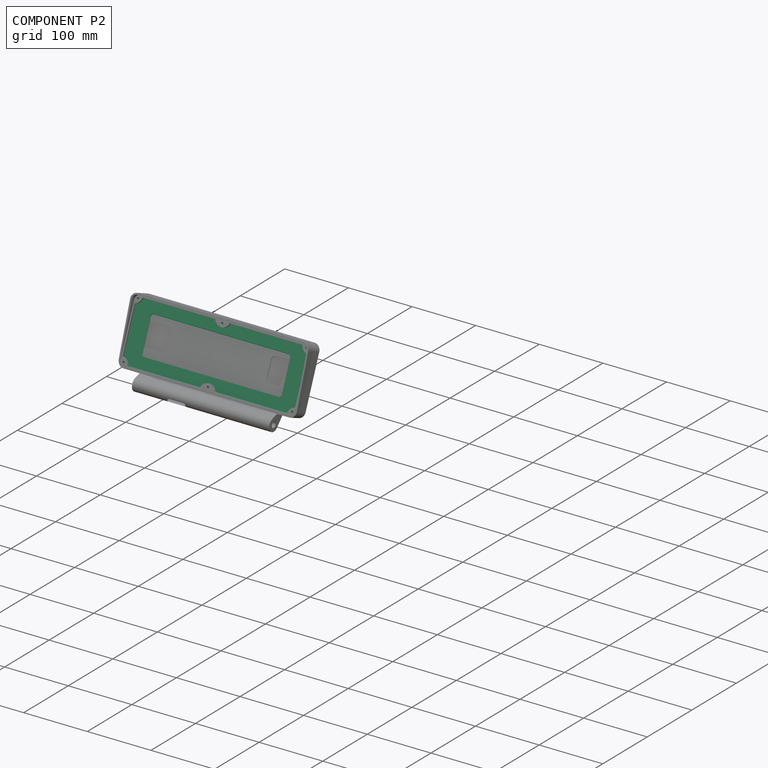
[diagram: component P2 — assembled]
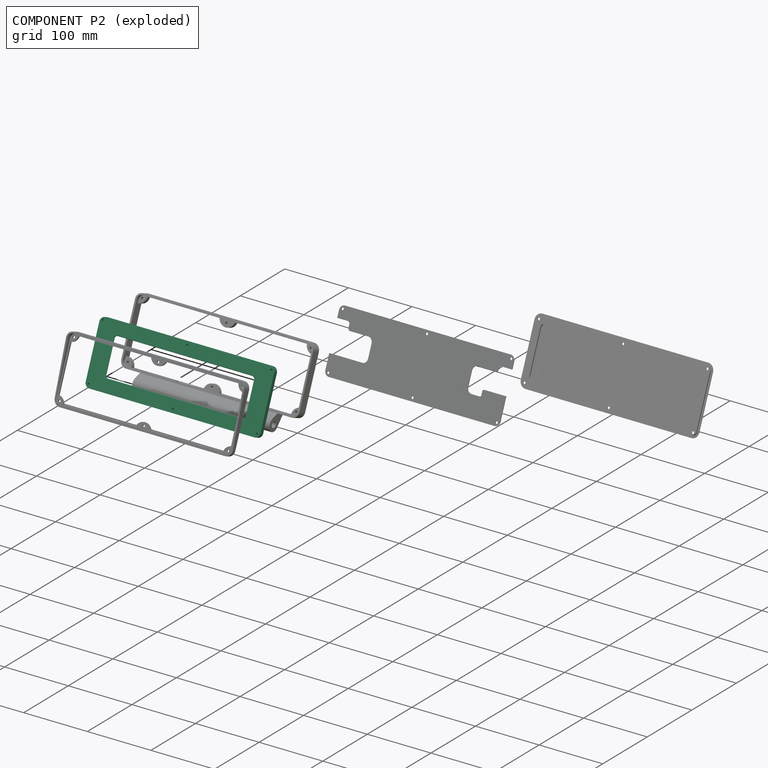
[diagram: component P2 — exploded]
COMPONENT P2 — recipe-attached ("Top Enclosure Display Front", a linked part whose construction recipe lives in a companion FreeCAD document of the same project; that document's serialized recipe follows).
Held by: FASTENED mate "Joint002" to P1; FASTENED mate "Joint003" to P1.
Construction recipe (the companion document, serialized — sketch geometry with constraints, then the solid features built on it; lengths are millimeters unless a unit is written):

FCSTD DOCUMENT  (FreeCAD 1.0R39319 (Git))
Label: TopEnclosureDisplayFront
License: All rights reserved
LicenseURL: https://en.wikipedia.org/wiki/All_rights_reserved
objects: PartDesign::SubShapeBinder×5, PartDesign::Mirrored×3, App::Link×2, PartDesign::Pocket×2, PartDesign::Hole×2, PartDesign::Pad×1, PartDesign::MultiTransform×1, PartDesign::Chamfer×1, PartDesign::Body×1
note: 32 computed .brp shape members not serialized (recipe doc carries the construction recipe); baked Part::Feature solids carry a one-line shape summary decoded from their .brp
EXTERNAL_REF file=TopEnclosure.FCStd obj=Sketch
EXTERNAL_REF file=Spec.FCStd obj=Spreadsheet

FEATURE [App::Link] Link  label="MasterSketch"
  LinkedObject = -> <external TopEnclosure.FCStd>#Sketch
FEATURE [PartDesign::SubShapeBinder] Binder
  BindCopyOnChange = 0
  BindMode = 0
  ClaimChildren = false
  Context = -> Body [Binder.]
  Fuse = false
  MakeFace = true
  OffsetFill = false
  OffsetIntersection = false
  OffsetJoinType = 0
  OffsetOpenResult = false
  PartialLoad = false
  Refine = true
  Relative = true
  Support = -> [Link[Edge10,Edge9,Edge11,Edge12,Edge13,Edge14,Edge15,Edge16]]
  _Version = 2
FEATURE [PartDesign::SubShapeBinder] Binder001
  BindCopyOnChange = 0
  BindMode = 0
  ClaimChildren = false
  Context = -> Body [Binder001.]
  Fuse = false
  MakeFace = true
  OffsetFill = false
  OffsetIntersection = false
  OffsetJoinType = 0
  OffsetOpenResult = false
  PartialLoad = false
  Refine = true
  Relative = true
  Support = -> [Link[Edge39]]
  _Version = 2
FEATURE [PartDesign::SubShapeBinder] Binder002
  BindCopyOnChange = 0
  BindMode = 0
  ClaimChildren = false
  Context = -> Body [Binder002.]
  Fuse = false
  MakeFace = true
  OffsetFill = false
  OffsetIntersection = false
  OffsetJoinType = 0
  OffsetOpenResult = false
  PartialLoad = false
  Refine = true
  Relative = true
  Support = -> [Link[Edge40]]
  _Version = 2
FEATURE [PartDesign::SubShapeBinder] Binder004
  BindCopyOnChange = 0
  BindMode = 0
  ClaimChildren = false
  Context = -> Body [Binder004.]
  Fuse = false
  MakeFace = true
  OffsetFill = false
  OffsetIntersection = false
  OffsetJoinType = 0
  OffsetOpenResult = false
  PartialLoad = false
  Refine = true
  Relative = true
  Support = -> [Link[Edge35,Edge36,Edge33,Edge34]]
  _Version = 2
FEATURE [PartDesign::SubShapeBinder] Binder005
  BindCopyOnChange = 0
  BindMode = 0
  ClaimChildren = false
  Context = -> Body [Binder005.]
  Fuse = false
  MakeFace = true
  OffsetFill = false
  OffsetIntersection = false
  OffsetJoinType = 0
  OffsetOpenResult = false
  PartialLoad = false
  Refine = true
  Relative = true
  Support = -> [Link[Edge26,Edge25,Edge27,Edge32,Edge31,Edge28,Edge29,Edge30]]
  _Version = 2
FEATURE [App::Link] Link001  label="Vars"
  LinkedObject = -> <external Spec.FCStd>#Spreadsheet
FEATURE [PartDesign::Pad] Pad
  Direction = (0,0,1)
  Length = 6.5
  Length2 = 10
  Profile = -> Binder
  Refine = true
  Suppressed = false
  Type = 0
  expr: Length = <<Vars>>.display_depth + <<Vars>>.top_enclosure_front_depth
FEATURE [PartDesign::Pocket] Pocket
  BaseFeature = -> Pad
  Direction = (0,0,-1)
  Length = 5
  Length2 = 5
  Profile = -> Binder005
  Refine = true
  Reversed = true
  Suppressed = false
  Type = 1
FEATURE [PartDesign::Pocket] Pocket001
  BaseFeature = -> Pocket
  Direction = (0,0,-1)
  Length = 5.5
  Length2 = 5
  Profile = -> Binder004
  Refine = true
  Reversed = true
  Suppressed = false
  Type = 0
  expr: Length = <<Vars>>.display_depth
FEATURE [PartDesign::Hole] Hole
  BaseFeature = -> Pocket001
  CustomThreadClearance = 0
  Depth = 25
  DepthType = 0
  Diameter = 3.6
  DrillForDepth = false
  DrillPoint = 1
  DrillPointAngle = 118
  HoleCutCountersinkAngle = 90
  HoleCutCustomValues = false
  HoleCutDepth = 0
  HoleCutDiameter = 6.1
  HoleCutType = 0
  ModelThread = false
  Profile = -> Binder001
  Refine = true
  Reversed = true
  Suppressed = false
  Tapered = false
  TaperedAngle = 90
  ThreadClass = 0
  ThreadDepth = 25
  ThreadDepthType = 0
  ThreadDirection = 0
  ThreadFit = 2
  ThreadSize = 9
  ThreadType = 1
  Threaded = false
  UseCustomThreadClearance = false
FEATURE [PartDesign::Mirrored] Mirrored
  MirrorPlane = -> YZ_Plane
  Refine = true
  Suppressed = false
  TransformMode = 0
FEATURE [PartDesign::Mirrored] Mirrored001
  MirrorPlane = -> XZ_Plane
  Refine = true
  Suppressed = false
  TransformMode = 0
FEATURE [PartDesign::MultiTransform] MultiTransform
  BaseFeature = -> Hole
  Originals = -> [Hole]
  Refine = true
  Suppressed = false
  TransformMode = 0
  Transformations = -> [Mirrored,Mirrored001]
FEATURE [PartDesign::Hole] Hole001
  BaseFeature = -> MultiTransform
  CustomThreadClearance = 0
  Depth = 25
  DepthType = 0
  Diameter = 3.6
  DrillForDepth = false
  DrillPoint = 1
  DrillPointAngle = 118
  HoleCutCountersinkAngle = 90
  HoleCutCustomValues = false
  HoleCutDepth = 0
  HoleCutDiameter = 6.1
  HoleCutType = 0
  ModelThread = false
  Profile = -> Binder002
  Refine = true
  Reversed = true
  Suppressed = false
  Tapered = false
  TaperedAngle = 90
  ThreadClass = 0
  ThreadDepth = 25
  ThreadDepthType = 0
  ThreadDirection = 0
  ThreadFit = 2
  ThreadSize = 9
  ThreadType = 1
  Threaded = false
  UseCustomThreadClearance = false
FEATURE [PartDesign::Mirrored] Mirrored002
  BaseFeature = -> Hole001
  MirrorPlane = -> XZ_Plane
  Originals = -> [Hole001]
  Refine = true
  Suppressed = false
  TransformMode = 0
FEATURE [PartDesign::Chamfer] Chamfer
  Angle = 45
  Base = -> Mirrored002 [Edge39]
  BaseFeature = -> Mirrored002
  ChamferType = 0
  FlipDirection = false
  Refine = true
  Size = 0.5
  Size2 = 1
  SupportTransform = false
  Suppressed = false
  UseAllEdges = false
FEATURE [PartDesign::Body] Body  label="Top Enclosure Display Front"
  AllowCompound = false
  Group = -> [Binder,Binder001,Binder002,Binder004,Binder005,Pad,Pocket,Pocket001,Hole,MultiTransform,Mirrored,Mirrored001,Hole001,Mirrored002,Chamfer]
  Origin = -> Origin
  Tip = -> Chamfer
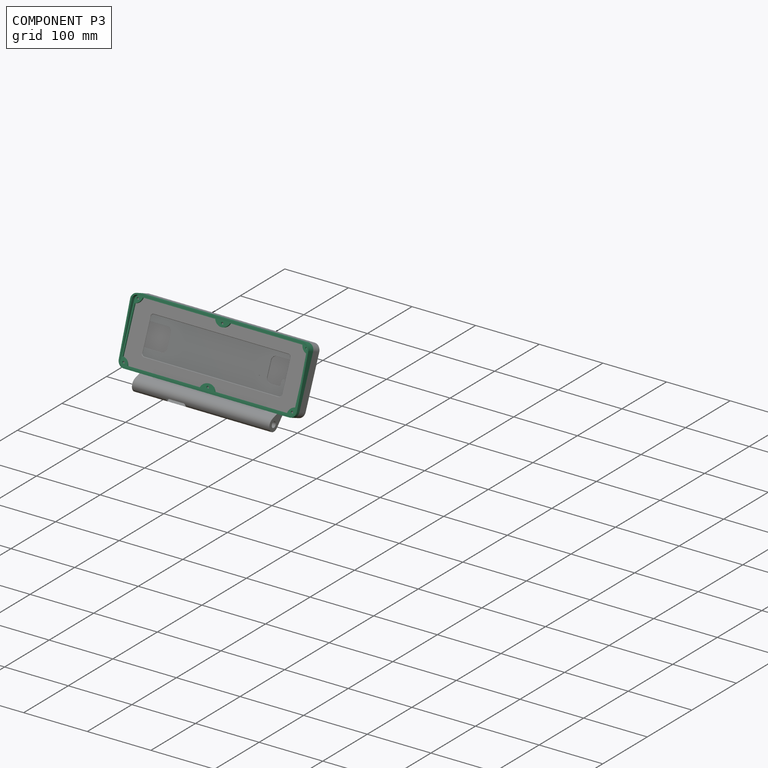
[diagram: component P3 — assembled]
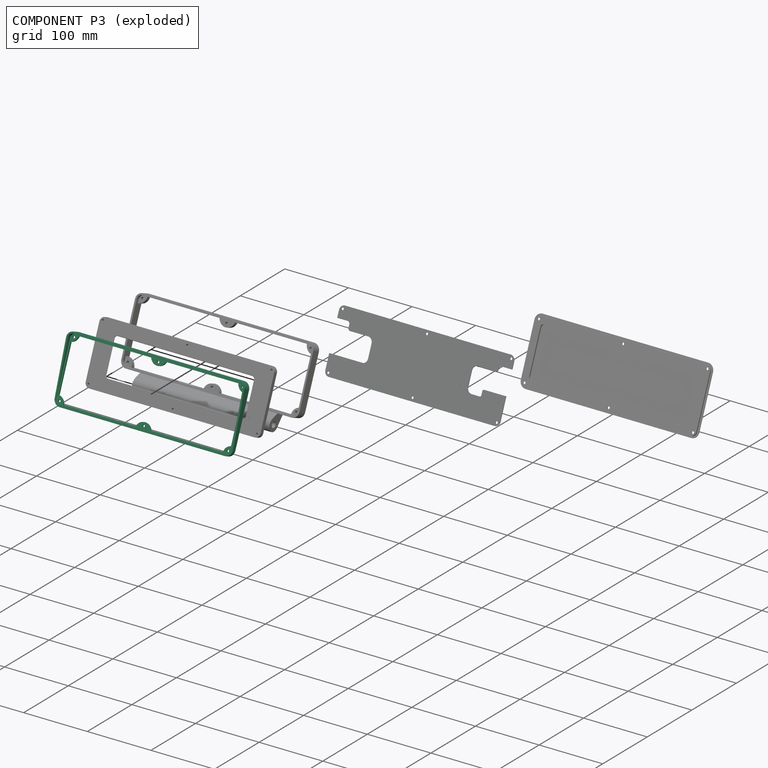
[diagram: component P3 — exploded]
COMPONENT P3 — recipe-attached ("Top Enclosure Hood", a linked part whose construction recipe lives in a companion FreeCAD document of the same project; that document's serialized recipe follows).
Held by: FASTENED mate "Joint004" to P4; FASTENED mate "Joint005" to P4.
Construction recipe (the companion document, serialized — sketch geometry with constraints, then the solid features built on it; lengths are millimeters unless a unit is written):

FCSTD DOCUMENT  (FreeCAD 1.0R39319 (Git))
Label: TopEnclosureHood_v2
License: All rights reserved
LicenseURL: https://en.wikipedia.org/wiki/All_rights_reserved
objects: PartDesign::SubShapeBinder×6, Sketcher::SketchObject×4, PartDesign::Pad×4, PartDesign::Mirrored×3, App::Link×2, PartDesign::Hole×2, App::VarSet×1, PartDesign::MultiTransform×1, PartDesign::Pocket×1, PartDesign::Body×1
note: 44 computed .brp shape members not serialized (recipe doc carries the construction recipe); baked Part::Feature solids carry a one-line shape summary decoded from their .brp
EXTERNAL_REF file=TopEnclosure.FCStd obj=Sketch
EXTERNAL_REF file=Spec.FCStd obj=Spreadsheet

FEATURE [App::Link] Link  label="MasterSketch"
  LinkedObject = -> <external TopEnclosure.FCStd>#Sketch
FEATURE [PartDesign::SubShapeBinder] Binder
  BindCopyOnChange = 0
  BindMode = 0
  ClaimChildren = false
  Context = -> Body [Binder.]
  Fuse = false
  MakeFace = true
  OffsetFill = false
  OffsetIntersection = false
  OffsetJoinType = 0
  OffsetOpenResult = false
  PartialLoad = false
  Refine = true
  Relative = true
  Support = -> [Link[Edge17,Edge24,Edge18,Edge2,Edge1,Edge3,Edge19,Edge20]]
  _Version = 2
FEATURE [PartDesign::SubShapeBinder] Binder001
  BindCopyOnChange = 0
  BindMode = 0
  ClaimChildren = false
  Context = -> Body [Binder001.]
  Fuse = false
  MakeFace = true
  OffsetFill = false
  OffsetIntersection = false
  OffsetJoinType = 0
  OffsetOpenResult = false
  PartialLoad = false
  Refine = true
  Relative = true
  Support = -> [Link[Edge37]]
  _Version = 2
FEATURE [Sketcher::SketchObject] Sketch
  ArcFitTolerance = 1e-06
  AttachmentOffset = pos=(0,0,3.1) rot=(0,0,1;0rad)
  AttachmentSupport = -> [XY_Plane]
  ExternalGeometry = -> [Binder,Binder001]
  FullyConstrained = true
  MakeInternals = false
  MapMode = 5
  Placement = pos=(0,0,3.1) rot=(0,0,1;0rad)
  expr: .AttachmentOffset.Base.z = <<LocalVars>>.bottom_offset
  sketch-geometry (4):
    g0: LineSegment StartX=-137.5 StartY=40 StartZ=0 EndX=-137.5 EndY=35.205 EndZ=0
    g1: LineSegment StartX=-130 StartY=47.5 StartZ=0 EndX=-125.205 EndY=47.5 EndZ=0
    g2: ArcOfCircle CenterX=-137.703 CenterY=47.7033 CenterZ=0 NormalX=0 NormalY=0 NormalZ=1 AngleXU=0 Radius=12.5 StartAngle=4.72865 EndAngle=6.26692
    g3: ArcOfCircle CenterX=-130 CenterY=40 CenterZ=0 NormalX=0 NormalY=0 NormalZ=1 AngleXU=0 Radius=7.5 StartAngle=1.5708 EndAngle=3.14159
  constraints (9):
    c: Coincident(g0,g-3)
    c: PointOnObject(g0,g-4)
    c: Vertical(g0)
    c: Coincident(g1,g-3)
    c: Tangent(g3,g0) = -1.5708
    c: Coincident(g1,g2)
    c: Coincident(g0,g2)
    c: Tangent(g3,g1) = 1.5708
    c: Coincident(g2,g-4)
FEATURE [PartDesign::SubShapeBinder] Binder002
  BindCopyOnChange = 0
  BindMode = 0
  ClaimChildren = false
  Context = -> Body [Binder002.]
  Fuse = false
  MakeFace = true
  OffsetFill = false
  OffsetIntersection = false
  OffsetJoinType = 0
  OffsetOpenResult = false
  PartialLoad = false
  Refine = true
  Relative = true
  Support = -> [Link[Edge39]]
  _Version = 2
FEATURE [PartDesign::SubShapeBinder] Binder003
  BindCopyOnChange = 0
  BindMode = 0
  ClaimChildren = false
  Context = -> Body [Binder003.]
  Fuse = false
  MakeFace = true
  OffsetFill = false
  OffsetIntersection = false
  OffsetJoinType = 0
  OffsetOpenResult = false
  PartialLoad = false
  Refine = true
  Relative = true
  Support = -> [Link[Edge38]]
  _Version = 2
FEATURE [PartDesign::SubShapeBinder] Binder004
  BindCopyOnChange = 0
  BindMode = 0
  ClaimChildren = false
  Context = -> Body [Binder004.]
  Fuse = false
  MakeFace = true
  OffsetFill = false
  OffsetIntersection = false
  OffsetJoinType = 0
  OffsetOpenResult = false
  PartialLoad = false
  Refine = true
  Relative = true
  Support = -> [Link[Edge40]]
  _Version = 2
FEATURE [Sketcher::SketchObject] Sketch001
  ArcFitTolerance = 1e-06
  AttachmentOffset = pos=(0,0,3.1) rot=(0,0,1;0rad)
  AttachmentSupport = -> [XY_Plane]
  ExternalGeometry = -> [Binder,Binder003]
  FullyConstrained = true
  MakeInternals = false
  MapMode = 5
  Placement = pos=(0,0,3.1) rot=(0,0,1;0rad)
  expr: .AttachmentOffset.Base.z = <<LocalVars>>.bottom_offset
  sketch-geometry (2):
    g0: LineSegment StartX=12.2674 StartY=47.5 StartZ=0 EndX=-12.2674 EndY=47.5 EndZ=0
    g1: ArcOfCircle CenterX=0 CenterY=49.9 CenterZ=0 NormalX=0 NormalY=0 NormalZ=1 AngleXU=0 Radius=12.5 StartAngle=3.33479 EndAngle=6.08999
  constraints (6):
    c: PointOnObject(g0,g-3)
    c: PointOnObject(g0,g-3)
    c: Coincident(g1,g-4)
    c: PointOnObject(g1,g-4)
    c: Coincident(g1,g0)
    c: Coincident(g0,g1)
FEATURE [App::Link] Link001  label="Vars"
  LinkedObject = -> <external Spec.FCStd>#Spreadsheet
FEATURE [PartDesign::Pad] Pad
  Direction = (0,0,1)
  Length = 12.5
  Length2 = 10
  Profile = -> Binder
  Refine = true
  Suppressed = false
  Type = 0
FEATURE [PartDesign::Mirrored] Mirrored
  MirrorPlane = -> YZ_Plane
  Refine = true
  Suppressed = false
  TransformMode = 0
FEATURE [PartDesign::Mirrored] Mirrored001
  MirrorPlane = -> XZ_Plane
  Refine = true
  Suppressed = false
  TransformMode = 0
FEATURE [Sketcher::SketchObject] Sketch002
  ArcFitTolerance = 1e-06
  AttachmentSupport = -> [YZ_Plane]
  FullyConstrained = true
  MakeInternals = false
  MapMode = 5
  Placement = pos=(0,0,0) rot=(0.57735,0.57735,0.57735;2.0944rad)
  expr: Constraints[13] = <<Vars>>.hood_angle
  expr: Constraints[4] = <<Vars>>.top_enclosure_height
  sketch-geometry (5):
    g0: LineSegment StartX=50 StartY=0 StartZ=0 EndX=50 EndY=12.5 EndZ=0
    g1: LineSegment StartX=-50 StartY=0 StartZ=0 EndX=-50 EndY=5.50732 EndZ=0
    g2: LineSegment StartX=-50 StartY=5.50732 StartZ=0 EndX=50 EndY=12.5 EndZ=0
    g3: LineSegment StartX=-50 StartY=5.50732 StartZ=0 EndX=-50 EndY=12.5 EndZ=0
    g4: LineSegment StartX=-50 StartY=12.5 StartZ=0 EndX=50 EndY=12.5 EndZ=0
  constraints (14):
    c: PointOnObject(g0,g-1)
    c: Vertical(g0)
    c: Vertical(g1)
    c: Symmetric(g1,g0,g-2)
    c: DistanceX(g1,g0) = 100
    c: DistanceY(g0,g0) = 12.5
    c: Coincident(g2,g1)
    c: Coincident(g2,g0)
    c: Coincident(g3,g1)
    c: Coincident(g4,g3)
    c: Coincident(g4,g0)
    c: Horizontal(g4)
    c: Vertical(g3)
    c: Angle(g4,g2) = 0.0698132
FEATURE [PartDesign::SubShapeBinder] Binder005
  BindCopyOnChange = 0
  BindMode = 0
  ClaimChildren = false
  Context = -> Body [Binder005.]
  Fuse = false
  MakeFace = true
  OffsetFill = false
  OffsetIntersection = false
  OffsetJoinType = 0
  OffsetOpenResult = false
  PartialLoad = false
  Refine = true
  Relative = true
  Support = -> [Sketch002[Edge2,Edge5,Edge4]]
  _Version = 2
FEATURE [App::VarSet] VarSet  label="LocalVars"
  bottom_offset = 3.1
  expr: bottom_offset = <<Vars>>.wall + <<Vars>>.clearance * 3
FEATURE [Sketcher::SketchObject] Sketch003
  ArcFitTolerance = 1e-06
  AttachmentOffset = pos=(0,0,3.1) rot=(0,0,1;0rad)
  AttachmentSupport = -> [XY_Plane]
  ExternalGeometry = -> [Binder]
  FullyConstrained = true
  MakeInternals = false
  MapMode = 5
  Placement = pos=(0,0,3.1) rot=(0,0,1;0rad)
  expr: .AttachmentOffset.Base.z = <<LocalVars>>.bottom_offset
  sketch-geometry (18):
    g0: LineSegment StartX=137.5 StartY=-40 StartZ=0 EndX=137.5 EndY=40 EndZ=0
    g1: LineSegment StartX=130 StartY=47.5 StartZ=0 EndX=-130 EndY=47.5 EndZ=0
    g2: LineSegment StartX=-137.5 StartY=40 StartZ=0 EndX=-137.5 EndY=-40 EndZ=0
    g3: LineSegment StartX=-130 StartY=-47.5 StartZ=0 EndX=130 EndY=-47.5 EndZ=0
    g4: ArcOfCircle CenterX=130 CenterY=-40 CenterZ=0 NormalX=0 NormalY=0 NormalZ=1 AngleXU=0 Radius=7.5 StartAngle=4.71239 EndAngle=6.28319
    g5: ArcOfCircle CenterX=130 CenterY=40 CenterZ=0 NormalX=0 NormalY=0 NormalZ=1 AngleXU=0 Radius=7.5 StartAngle=3e-16 EndAngle=1.5708
    g6: ArcOfCircle CenterX=-130 CenterY=40 CenterZ=0 NormalX=0 NormalY=0 NormalZ=1 AngleXU=0 Radius=7.5 StartAngle=1.5708 EndAngle=3.14159
    g7: ArcOfCircle CenterX=-130 CenterY=-40 CenterZ=0 NormalX=0 NormalY=0 NormalZ=1 AngleXU=0 Radius=7.5 StartAngle=3.14159 EndAngle=4.71239
    g8: LineSegment StartX=135.5 StartY=-40 StartZ=0 EndX=135.5 EndY=40 EndZ=0
    g9: LineSegment StartX=130 StartY=45.5 StartZ=0 EndX=-130 EndY=45.5 EndZ=0
    g10: LineSegment StartX=-135.5 StartY=40 StartZ=0 EndX=-135.5 EndY=-40 EndZ=0
    g11: LineSegment StartX=-130 StartY=-45.5 StartZ=0 EndX=130 EndY=-45.5 EndZ=0
    g12: ArcOfCircle CenterX=130 CenterY=-40 CenterZ=0 NormalX=0 NormalY=0 NormalZ=1 AngleXU=0 Radius=5.5 StartAngle=4.71239 EndAngle=6.28319
    g13: ArcOfCircle CenterX=130 CenterY=40 CenterZ=0 NormalX=0 NormalY=0 NormalZ=1 AngleXU=0 Radius=5.5 StartAngle=-9e-16 EndAngle=1.5708
    g14: ArcOfCircle CenterX=-130 CenterY=40 CenterZ=0 NormalX=0 NormalY=0 NormalZ=1 AngleXU=0 Radius=5.5 StartAngle=1.5708 EndAngle=3.14159
    g15: ArcOfCircle CenterX=-130 CenterY=-40 CenterZ=0 NormalX=0 NormalY=0 NormalZ=1 AngleXU=0 Radius=5.5 StartAngle=3.14159 EndAngle=4.71239
    g16: GeomPoint [constr] X=-137.5 Y=47.5 Z=0
    g17: GeomPoint [constr] X=0 Y=0 Z=0
  constraints (37):
    c: Tangent(g0,g4) = -1.5708
    c: Tangent(g0,g5) = -1.5708
    c: Tangent(g1,g5) = -1.5708
    c: Tangent(g1,g6) = -1.5708
    c: Tangent(g2,g6) = -1.5708
    c: Tangent(g2,g7) = -1.5708
    c: Tangent(g3,g7) = -1.5708
    c: Tangent(g3,g4) = -1.5708
    c: Vertical(g0)
    c: Vertical(g2)
    c: Horizontal(g1)
    c: Horizontal(g3)
    c: Equal(g4,g5)
    c: Equal(g5,g6)
    c: Equal(g6,g7)
    c: Tangent(g8,g12) = -1.5708
    c: Tangent(g8,g13) = -1.5708
    c: Tangent(g9,g13) = -1.5708
    c: Tangent(g9,g14) = -1.5708
    c: Tangent(g10,g14) = -1.5708
    c: Tangent(g10,g15) = -1.5708
    c: Tangent(g11,g15) = -1.5708
    c: Tangent(g11,g12) = -1.5708
    c: Coincident(g4,g12)
    c: Coincident(g5,g13)
    c: Coincident(g6,g14)
    c: Coincident(g7,g15)
    c: Vertical(g8)
    c: Vertical(g10)
    c: Horizontal(g9)
    c: Symmetric(g2,g0,g17)
    c: PointOnObject(g16,g1)
    c: PointOnObject(g16,g2)
    c: Coincident(g17,g-1)
    c: Coincident(g6,g-3)
    c: Equal(g6,g-3)
    c: DistanceY(g9,g1) = 2
FEATURE [PartDesign::Pad] Pad003
  BaseFeature = -> Pad
  Direction = (0,0,1)
  Length = 2.5
  Length2 = 10
  Profile = -> Sketch003
  ReferenceAxis = -> Sketch003 [N_Axis]
  Refine = true
  Suppressed = false
  Type = 0
  expr: Length = <<Vars>>.wall
FEATURE [PartDesign::Pad] Pad001
  BaseFeature = -> Pad003
  Direction = (0,0,1)
  Length = 2.5
  Length2 = 10
  Profile = -> Sketch
  ReferenceAxis = -> Sketch [N_Axis]
  Refine = true
  Suppressed = false
  Type = 0
  expr: Length = <<Vars>>.wall
FEATURE [PartDesign::Hole] Hole
  BaseFeature = -> Pad001
  CustomThreadClearance = 0
  Depth = 601.12
  DepthType = 1
  Diameter = 3.6
  DrillForDepth = false
  DrillPoint = 1
  DrillPointAngle = 118
  HoleCutCountersinkAngle = 90
  HoleCutCustomValues = false
  HoleCutDepth = 0
  HoleCutDiameter = 6.1
  HoleCutType = 0
  ModelThread = false
  Profile = -> Binder002
  Refine = true
  Reversed = true
  Suppressed = false
  Tapered = false
  TaperedAngle = 90
  ThreadClass = 0
  ThreadDepth = 601.12
  ThreadDepthType = 0
  ThreadDirection = 0
  ThreadFit = 2
  ThreadSize = 9
  ThreadType = 1
  Threaded = false
  UseCustomThreadClearance = false
FEATURE [PartDesign::MultiTransform] MultiTransform
  BaseFeature = -> Hole
  Originals = -> [Pad001,Hole]
  Refine = true
  Suppressed = false
  TransformMode = 0
  Transformations = -> [Mirrored,Mirrored001]
FEATURE [PartDesign::Pad] Pad002
  BaseFeature = -> MultiTransform
  Direction = (0,0,1)
  Length = 2.5
  Length2 = 10
  Profile = -> Sketch001
  ReferenceAxis = -> Sketch001 [N_Axis]
  Refine = true
  Suppressed = false
  Type = 0
  expr: Length = <<Vars>>.wall
FEATURE [PartDesign::Hole] Hole001
  BaseFeature = -> Pad002
  CustomThreadClearance = 0
  Depth = 25
  DepthType = 0
  Diameter = 3.6
  DrillForDepth = false
  DrillPoint = 1
  DrillPointAngle = 118
  HoleCutCountersinkAngle = 90
  HoleCutCustomValues = false
  HoleCutDepth = 0
  HoleCutDiameter = 6.1
  HoleCutType = 0
  ModelThread = false
  Profile = -> Binder004
  Refine = true
  Reversed = true
  Suppressed = false
  Tapered = false
  TaperedAngle = 90
  ThreadClass = 0
  ThreadDepth = 25
  ThreadDepthType = 0
  ThreadDirection = 0
  ThreadFit = 2
  ThreadSize = 9
  ThreadType = 1
  Threaded = false
  UseCustomThreadClearance = false
FEATURE [PartDesign::Mirrored] Mirrored002
  BaseFeature = -> Hole001
  MirrorPlane = -> XZ_Plane
  Originals = -> [Pad002,Hole001]
  Refine = true
  Suppressed = false
  TransformMode = 0
FEATURE [PartDesign::Pocket] Pocket
  BaseFeature = -> Mirrored002
  Direction = (-1,0,0)
  Length = 5
  Length2 = 5
  Midplane = true
  Profile = -> Binder005
  Refine = true
  Suppressed = false
  Type = 1
FEATURE [PartDesign::Body] Body  label="Top Enclosure Hood"
  AllowCompound = false
  Group = -> [Binder,Sketch,Binder001,Binder002,Binder003,Binder004,Sketch001,Pad,Pad003,Pad001,Hole,MultiTransform,Mirrored,Mirrored001,Pad002,Hole001,Mirrored002,Sketch002,Binder005,Pocket,Sketch003]
  Origin = -> Origin
  Tip = -> Pocket
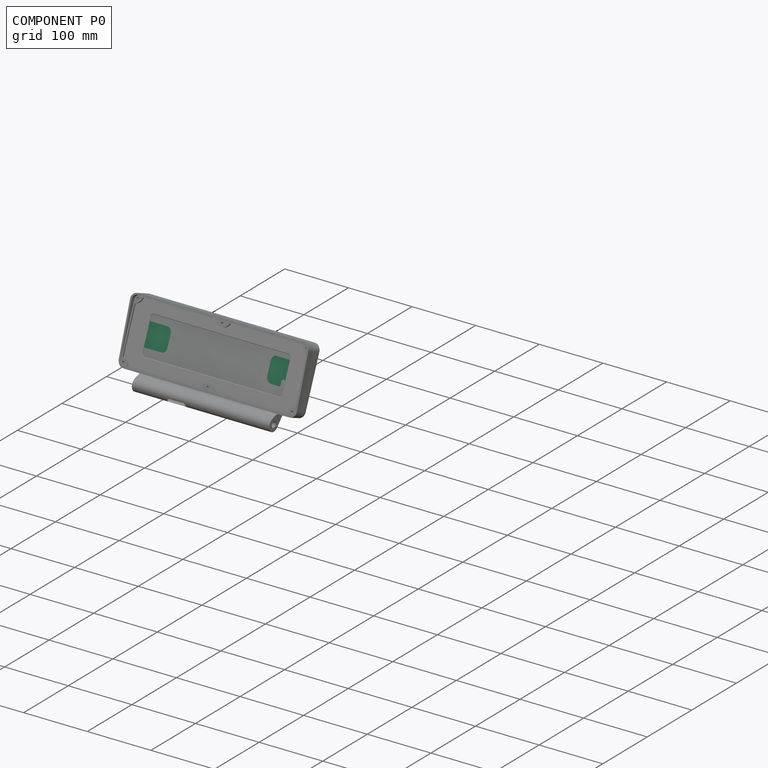
[diagram: component P0 — assembled]
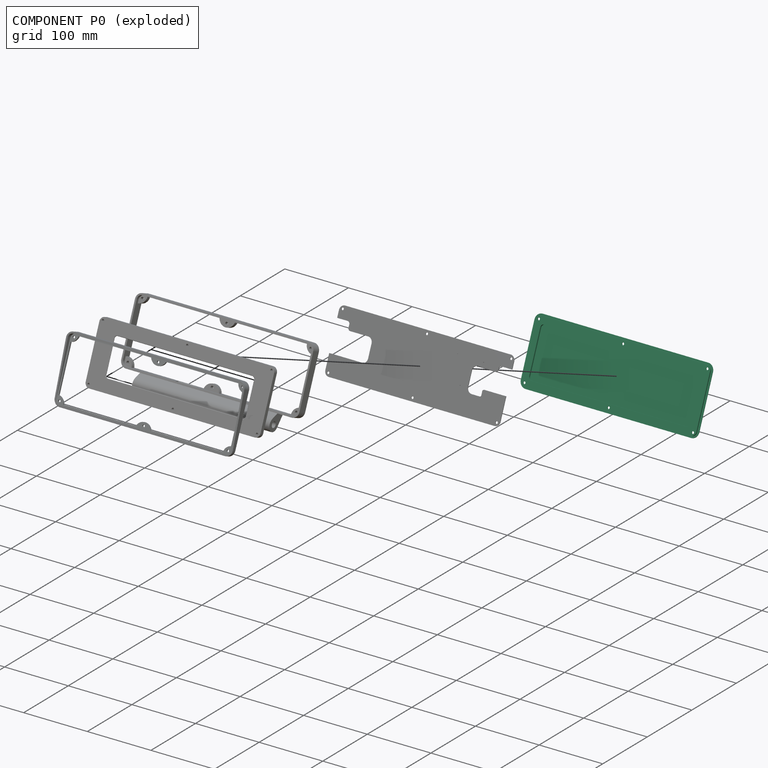
[diagram: component P0 — exploded]
COMPONENT P0 — recipe-attached ("Top Enclosure Back", a linked part whose construction recipe lives in a companion FreeCAD document of the same project; that document's serialized recipe follows).
Held by: FASTENED mate "Joint006" to P4; FASTENED mate "Joint007" to P4.
Construction recipe (the companion document, serialized — sketch geometry with constraints, then the solid features built on it; lengths are millimeters unless a unit is written):

FCSTD DOCUMENT  (FreeCAD 1.0R39319 (Git))
Label: TopEnclosureBack_v2
License: All rights reserved
LicenseURL: https://en.wikipedia.org/wiki/All_rights_reserved
objects: PartDesign::SubShapeBinder×4, Sketcher::SketchObject×3, PartDesign::Pocket×3, PartDesign::Mirrored×3, App::Link×2, PartDesign::Pad×2, PartDesign::Hole×2, PartDesign::MultiTransform×1, PartDesign::Body×1, App::VarSet×1
note: 40 computed .brp shape members not serialized (recipe doc carries the construction recipe); baked Part::Feature solids carry a one-line shape summary decoded from their .brp
EXTERNAL_REF file=TopEnclosure.FCStd obj=Sketch
EXTERNAL_REF file=TopEnclosure.FCStd obj=Link

FEATURE [App::Link] Link  label="MasterSketch"
  LinkedObject = -> <external TopEnclosure.FCStd>#Sketch
FEATURE [App::Link] Link001  label="Vars"
  LinkedObject = -> <external TopEnclosure.FCStd>#Link
FEATURE [PartDesign::SubShapeBinder] Binder
  BindCopyOnChange = 0
  BindMode = 0
  ClaimChildren = false
  Context = -> Body [Binder.]
  Fuse = false
  MakeFace = true
  OffsetFill = false
  OffsetIntersection = false
  OffsetJoinType = 0
  OffsetOpenResult = false
  PartialLoad = false
  Refine = true
  Relative = true
  Support = -> [Link[Edge13,Edge14,Edge15,Edge12,Edge11,Edge10,Edge9,Edge16]]
  _Version = 2
FEATURE [PartDesign::SubShapeBinder] Binder001
  BindCopyOnChange = 0
  BindMode = 0
  ClaimChildren = false
  Context = -> Body [Binder001.]
  Fuse = false
  MakeFace = true
  OffsetFill = false
  OffsetIntersection = false
  OffsetJoinType = 0
  OffsetOpenResult = false
  PartialLoad = false
  Placement = pos=(0,0,2.3) rot=(0,0,1;0rad)
  Refine = true
  Relative = true
  Support = -> [Link[Edge18,Edge17,Edge24,Edge23,Edge19,Edge22,Edge21,Edge20]]
  _Version = 2
  expr: .Placement.Base.z = <<LocalVars>>.bottom_offset
FEATURE [PartDesign::SubShapeBinder] Binder002
  BindCopyOnChange = 0
  BindMode = 0
  ClaimChildren = false
  Context = -> Body [Binder002.]
  Fuse = false
  MakeFace = true
  OffsetFill = false
  OffsetIntersection = false
  OffsetJoinType = 0
  OffsetOpenResult = false
  PartialLoad = false
  Refine = true
  Relative = true
  Support = -> [Link[Edge39]]
  _Version = 2
FEATURE [PartDesign::SubShapeBinder] Binder003
  BindCopyOnChange = 0
  BindMode = 0
  ClaimChildren = false
  Context = -> Body [Binder003.]
  Fuse = false
  MakeFace = true
  OffsetFill = false
  OffsetIntersection = false
  OffsetJoinType = 0
  OffsetOpenResult = false
  PartialLoad = false
  Refine = true
  Relative = true
  Support = -> [Link[Edge40]]
  _Version = 2
FEATURE [PartDesign::Pad] Pad
  Direction = (0,0,1)
  Length = 2.3
  Length2 = 10
  Profile = -> Binder
  Refine = true
  Suppressed = false
  Type = 0
  expr: Length = <<LocalVars>>.bottom_offset
FEATURE [PartDesign::Pad] Pad001
  BaseFeature = -> Pad
  Direction = (0,0,1)
  Length = 1
  Length2 = 10
  Profile = -> Binder001
  Refine = true
  Suppressed = false
  Type = 0
FEATURE [PartDesign::Hole] Hole
  BaseFeature = -> Pad001
  CustomThreadClearance = 0
  Depth = 600.733
  DepthType = 1
  Diameter = 3.6
  DrillForDepth = false
  DrillPoint = 1
  DrillPointAngle = 118
  HoleCutCountersinkAngle = 90
  HoleCutCustomValues = false
  HoleCutDepth = 0
  HoleCutDiameter = 6.1
  HoleCutType = 0
  ModelThread = false
  Profile = -> Binder002
  Refine = true
  Reversed = true
  Suppressed = false
  Tapered = false
  TaperedAngle = 90
  ThreadClass = 0
  ThreadDepth = 600.733
  ThreadDepthType = 0
  ThreadDirection = 0
  ThreadFit = 2
  ThreadSize = 9
  ThreadType = 1
  Threaded = false
  UseCustomThreadClearance = false
FEATURE [Sketcher::SketchObject] Sketch
  ArcFitTolerance = 1e-06
  AttachmentSupport = -> [Hole]
  ExternalGeometry = -> [Hole]
  FullyConstrained = true
  MakeInternals = false
  MapMode = 5
  Placement = pos=(0,0,3.3) rot=(0,0,1;0rad)
  expr: Constraints[19] = <<LocalVars>>.m3_nut_dia
  sketch-geometry (7):
    g0: LineSegment StartX=-129.1 StartY=42.4 StartZ=0 EndX=-130.75 EndY=45.2579 EndZ=0
    g1: LineSegment StartX=-130.75 StartY=45.2579 StartZ=0 EndX=-134.05 EndY=45.2579 EndZ=0
    g2: LineSegment StartX=-134.05 StartY=45.2579 StartZ=0 EndX=-135.7 EndY=42.4 EndZ=0
    g3: LineSegment StartX=-135.7 StartY=42.4 StartZ=0 EndX=-134.05 EndY=39.5421 EndZ=0
    g4: LineSegment StartX=-134.05 StartY=39.5421 StartZ=0 EndX=-130.75 EndY=39.5421 EndZ=0
    g5: LineSegment StartX=-130.75 StartY=39.5421 StartZ=0 EndX=-129.1 EndY=42.4 EndZ=0
    g6: Circle [constr] CenterX=-132.4 CenterY=42.4 CenterZ=0 NormalX=0 NormalY=0 NormalZ=1 AngleXU=0 Radius=3.3
  constraints (16):
    c: Coincident(g0,g1)
    c: Coincident(g1,g2)
    c: Coincident(g2,g3)
    c: Coincident(g3,g4)
    c: Coincident(g4,g5)
    c: Coincident(g5,g0)
    c: Equal(g0, g1-g5) x5
    c: PointOnObject(g0,g6)
    c: PointOnObject(g1,g6)
    c: PointOnObject(g2,g6)
    c: PointOnObject(g3,g6)
    c: PointOnObject(g4,g6)
    c: PointOnObject(g5,g6)
    c: Coincident(g6,g-3)
    c: Horizontal(g1)
    c: Diameter(g6) = 6.6
FEATURE [PartDesign::Pocket] Pocket
  BaseFeature = -> Hole
  Direction = (0,0,-1)
  Length = 3
  Length2 = 5
  Profile = -> Sketch
  ReferenceAxis = -> Sketch [N_Axis]
  Refine = true
  Suppressed = false
  Type = 0
FEATURE [PartDesign::Mirrored] Mirrored
  MirrorPlane = -> YZ_Plane
  Refine = true
  Suppressed = false
  TransformMode = 0
FEATURE [PartDesign::Mirrored] Mirrored001
  MirrorPlane = -> XZ_Plane
  Refine = true
  Suppressed = false
  TransformMode = 0
FEATURE [PartDesign::MultiTransform] MultiTransform
  BaseFeature = -> Pocket
  Originals = -> [Hole,Pocket]
  Refine = true
  Suppressed = false
  TransformMode = 0
  Transformations = -> [Mirrored,Mirrored001]
FEATURE [PartDesign::Hole] Hole001
  BaseFeature = -> MultiTransform
  CustomThreadClearance = 0
  Depth = 600.733
  DepthType = 1
  Diameter = 3.6
  DrillForDepth = false
  DrillPoint = 1
  DrillPointAngle = 118
  HoleCutCountersinkAngle = 90
  HoleCutCustomValues = false
  HoleCutDepth = 0
  HoleCutDiameter = 6.1
  HoleCutType = 0
  ModelThread = false
  Profile = -> Binder003
  Refine = true
  Reversed = true
  Suppressed = false
  Tapered = false
  TaperedAngle = 90
  ThreadClass = 0
  ThreadDepth = 600.733
  ThreadDepthType = 0
  ThreadDirection = 0
  ThreadFit = 2
  ThreadSize = 9
  ThreadType = 1
  Threaded = false
  UseCustomThreadClearance = false
FEATURE [Sketcher::SketchObject] Sketch001
  ArcFitTolerance = 1e-06
  AttachmentSupport = -> [Hole001]
  ExternalGeometry = -> [Hole001]
  FullyConstrained = true
  MakeInternals = false
  MapMode = 5
  Placement = pos=(0,0,3.3) rot=(0,0,1;0rad)
  expr: Constraints[19] = <<LocalVars>>.m3_nut_dia
  sketch-geometry (7):
    g0: LineSegment StartX=3.3 StartY=42.4 StartZ=0 EndX=1.65 EndY=45.2579 EndZ=0
    g1: LineSegment StartX=1.65 StartY=45.2579 StartZ=0 EndX=-1.65 EndY=45.2579 EndZ=0
    g2: LineSegment StartX=-1.65 StartY=45.2579 StartZ=0 EndX=-3.3 EndY=42.4 EndZ=0
    g3: LineSegment StartX=-3.3 StartY=42.4 StartZ=0 EndX=-1.65 EndY=39.5421 EndZ=0
    g4: LineSegment StartX=-1.65 StartY=39.5421 StartZ=0 EndX=1.65 EndY=39.5421 EndZ=0
    g5: LineSegment StartX=1.65 StartY=39.5421 StartZ=0 EndX=3.3 EndY=42.4 EndZ=0
    g6: Circle [constr] CenterX=0 CenterY=42.4 CenterZ=0 NormalX=0 NormalY=0 NormalZ=1 AngleXU=0 Radius=3.3
  constraints (16):
    c: Coincident(g0,g1)
    c: Coincident(g1,g2)
    c: Coincident(g2,g3)
    c: Coincident(g3,g4)
    c: Coincident(g4,g5)
    c: Coincident(g5,g0)
    c: Equal(g0, g1-g5) x5
    c: PointOnObject(g0,g6)
    c: PointOnObject(g1,g6)
    c: PointOnObject(g2,g6)
    c: PointOnObject(g3,g6)
    c: PointOnObject(g4,g6)
    c: PointOnObject(g5,g6)
    c: Coincident(g6,g-3)
    c: Horizontal(g1)
    c: Diameter(g6) = 6.6
FEATURE [PartDesign::Pocket] Pocket001
  BaseFeature = -> Hole001
  Direction = (0,0,-1)
  Length = 3
  Length2 = 5
  Profile = -> Sketch001
  ReferenceAxis = -> Sketch001 [N_Axis]
  Refine = true
  Suppressed = false
  Type = 0
FEATURE [PartDesign::Mirrored] Mirrored002
  BaseFeature = -> Pocket001
  MirrorPlane = -> XZ_Plane
  Originals = -> [Hole001,Pocket001]
  Refine = true
  Suppressed = false
  TransformMode = 0
FEATURE [Sketcher::SketchObject] Sketch002
  ArcFitTolerance = 1e-06
  AttachmentSupport = -> [XY_Plane]
  ExternalGeometry = -> [Mirrored002]
  FullyConstrained = true
  MakeInternals = false
  MapMode = 5
  sketch-geometry (12):
    g0: LineSegment StartX=127.4 StartY=-32.4 StartZ=0 EndX=127.4 EndY=32.4 EndZ=0
    g1: LineSegment StartX=122.4 StartY=37.4 StartZ=0 EndX=-122.4 EndY=37.4 EndZ=0
    g2: LineSegment StartX=-127.4 StartY=32.4 StartZ=0 EndX=-127.4 EndY=-32.4 EndZ=0
    g3: LineSegment StartX=-122.4 StartY=-37.4 StartZ=0 EndX=122.4 EndY=-37.4 EndZ=0
    g4: ArcOfCircle CenterX=122.4 CenterY=-32.4 CenterZ=0 NormalX=0 NormalY=0 NormalZ=1 AngleXU=0 Radius=5 StartAngle=4.71239 EndAngle=6.28319
    g5: ArcOfCircle CenterX=122.4 CenterY=32.4 CenterZ=0 NormalX=0 NormalY=0 NormalZ=1 AngleXU=0 Radius=5 StartAngle=0 EndAngle=1.5708
    g6: ArcOfCircle CenterX=-122.4 CenterY=32.4 CenterZ=0 NormalX=0 NormalY=0 NormalZ=1 AngleXU=0 Radius=5 StartAngle=1.5708 EndAngle=3.14159
    g7: ArcOfCircle CenterX=-122.4 CenterY=-32.4 CenterZ=0 NormalX=0 NormalY=0 NormalZ=1 AngleXU=0 Radius=5 StartAngle=3.14159 EndAngle=4.71239
    g8: GeomPoint [constr] X=-132.4 Y=42.4 Z=0
    g9: GeomPoint [constr] X=0 Y=0 Z=0
    g10: LineSegment [constr] StartX=0 StartY=47.4 StartZ=0 EndX=0 EndY=37.4 EndZ=0
    g11: LineSegment [constr] StartX=-127.4 StartY=32.4 StartZ=0 EndX=-137.4 EndY=32.4 EndZ=0
  constraints (27):
    c: Tangent(g0,g4) = -1.5708
    c: Tangent(g0,g5) = -1.5708
    c: Tangent(g1,g5) = -1.5708
    c: Tangent(g1,g6) = -1.5708
    c: Tangent(g2,g6) = -1.5708
    c: Tangent(g2,g7) = -1.5708
    c: Tangent(g3,g7) = -1.5708
    c: Tangent(g3,g4) = -1.5708
    c: Vertical(g0)
    c: Vertical(g2)
    c: Horizontal(g1)
    c: Horizontal(g3)
    c: Equal(g4,g5)
    c: Equal(g5,g6)
    c: Equal(g6,g7)
    c: Symmetric(g2,g0,g9)
    c: Coincident(g9,g-1)
    c: Coincident(g8,g-3)
    c: Diameter(g6) = 10
    c: PointOnObject(g10,g-5)
    c: PointOnObject(g10,g1)
    c: Symmetric(g10,g10,g-4)
    c: PointOnObject(g10,g-2)
    c: Coincident(g11,g2)
    c: PointOnObject(g11,g-6)
    c: Horizontal(g11)
    c: Equal(g11,g10)
FEATURE [PartDesign::Pocket] Pocket002
  BaseFeature = -> Mirrored002
  Direction = (0,0,-1)
  Length = 2.5
  Length2 = 5
  Profile = -> Sketch002
  ReferenceAxis = -> Sketch002 [N_Axis]
  Refine = true
  Reversed = true
  Suppressed = false
  Type = 0
FEATURE [PartDesign::Body] Body  label="Top Enclosure Back"
  AllowCompound = false
  Group = -> [Binder,Binder001,Binder002,Binder003,Pad,Pad001,Hole,Sketch,Pocket,MultiTransform,Mirrored,Mirrored001,Hole001,Sketch001,Pocket001,Mirrored002,Sketch002,Pocket002]
  Origin = -> Origin
  Tip = -> Pocket002
FEATURE [App::VarSet] VarSet  label="LocalVars"
  bottom_offset = 2.3
  m3_nut_dia = 6.6
  expr: bottom_offset = <<Vars>>.wall - <<Vars>>.clearance
  expr: m3_nut_dia = 6.2 + 2 * <<Vars>>.clearance
PROVENANCE & LICENSES
Assembly and component geometry: a FreeCAD (.FCStd) document from a public repository crawl; components, placements and joints were extracted with FreeCAD and each solid tessellated.
Construction recipes: the document's own serialized feature recipes (and, for linked parts, the recipes of companion documents from the same project).
License: as declared in the source repository (recorded in the dataset sidecar).
Joints: native FreeCAD joints and A2plus constraints are mapped to standard mate types.
Verification: 5 of this assembly's 5 components carry a construction recipe (5 from linked companion documents in the same project); the rest are geometry-only. Every component's tessellation passed the extraction mesh gates (mesh-volume checksum against the B-rep where available, bounding-box inflation <= 2%).
Renders: orthographic iso camera (az 35 / el 25); the floor grid conveys scale (grid pitch printed in each image; no ruler). In the exploded view each component is displaced by its stored offset vector: the offsets alone carry the explosion direction (mate normal/axis signs are not orientation cues and do not encode it), and separation distances are assigned per mate-chain, not proportionally to assembly-order depth.
